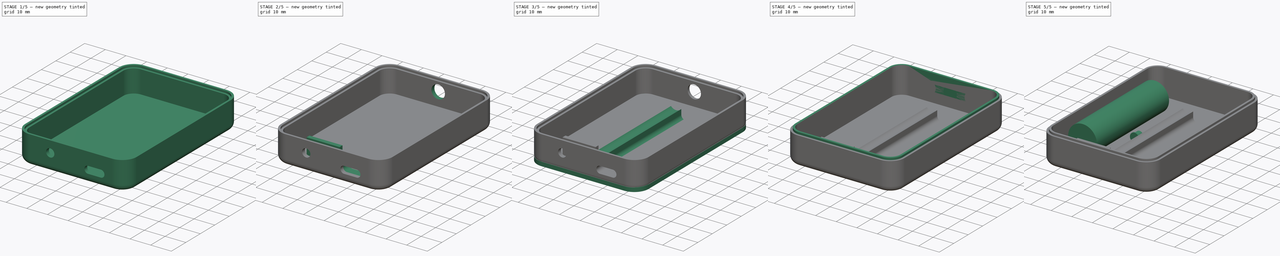
[diagram: build sequence overview — one tinted view per stage of 5, left to right]
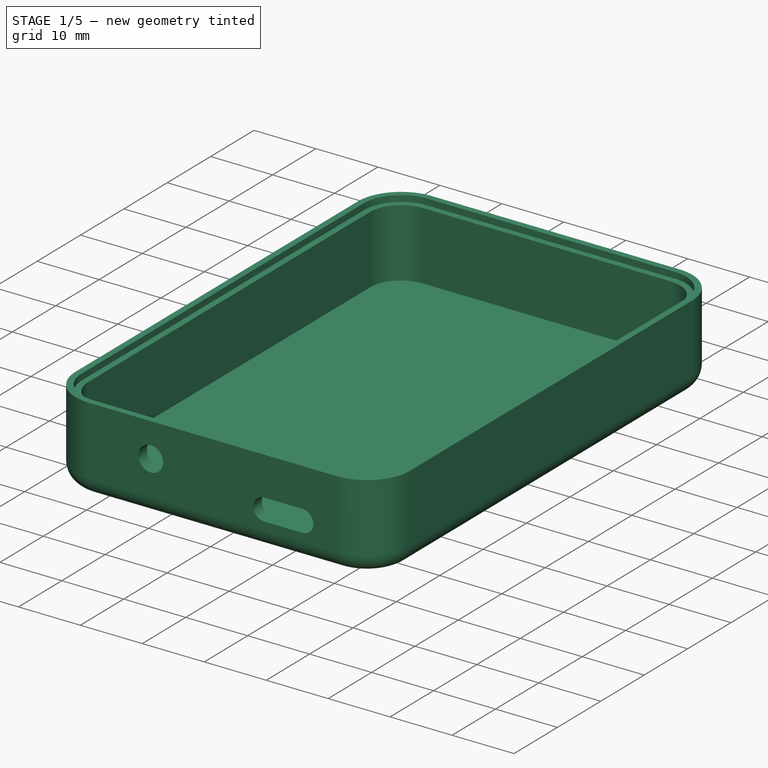
[diagram: stage 1 of 5 — iso view after this stage's code; geometry added in this stage tinted green]
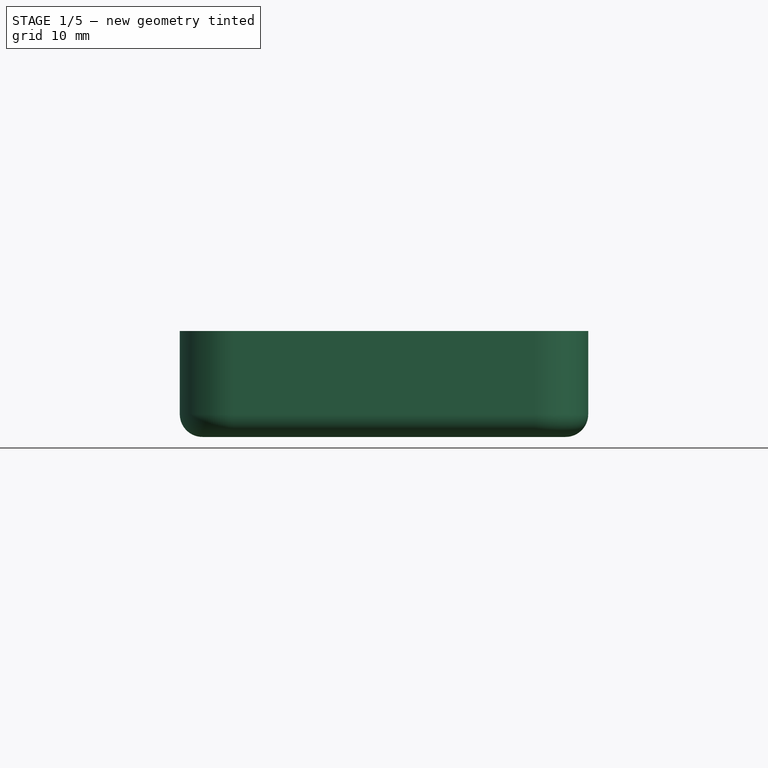
[diagram: stage 1 of 5 — front view after this stage's code; geometry added in this stage tinted green]
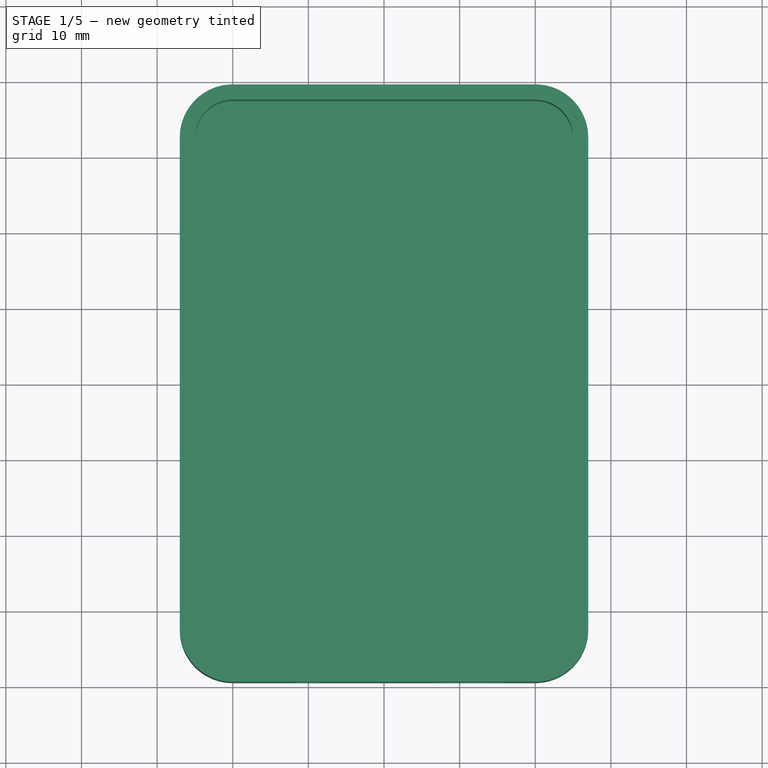
[diagram: stage 1 of 5 — top view after this stage's code; geometry added in this stage tinted green]
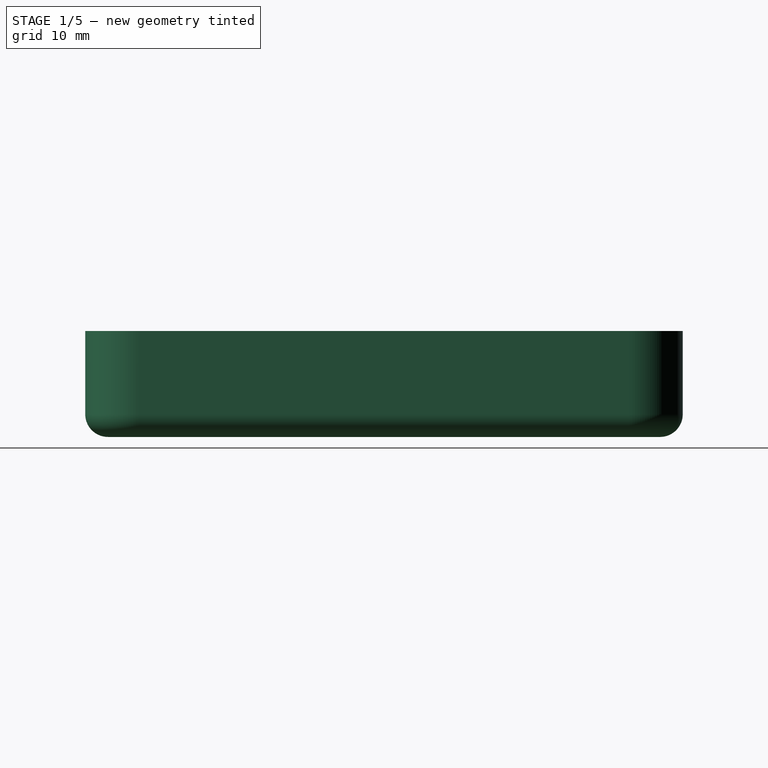
[diagram: stage 1 of 5 — right view after this stage's code; geometry added in this stage tinted green]
FCSTD DOCUMENT  (FreeCAD 1.0R39109 (Git))
Label: Model_PortableV2
License: All rights reserved
LicenseURL: https://en.wikipedia.org/wiki/All_rights_reserved
objects: Part::Feature×88, App::Part×23, Sketcher::SketchObject×17, PartDesign::Pad×10, PartDesign::Fillet×6, PartDesign::Pocket×6, PartDesign::Body×3, Part::Cylinder×1
note: 192 computed .brp shape members not serialized (recipe doc carries the construction recipe); baked Part::Feature solids carry a one-line shape summary decoded from their .brp

FEATURE [Sketcher::SketchObject] Sketch
  ArcFitTolerance = 1e-06
  AttachmentSupport = -> [XY_Plane]
  FullyConstrained = true
  MakeInternals = false
  MapMode = 5
  sketch-geometry (12):
    g0: LineSegment StartX=-27 StartY=32.5 StartZ=0 EndX=-27 EndY=-32.5 EndZ=0
    g1: LineSegment StartX=-20 StartY=-39.5 StartZ=0 EndX=20 EndY=-39.5 EndZ=0
    g2: LineSegment StartX=27 StartY=-32.5 StartZ=0 EndX=27 EndY=32.5 EndZ=0
    g3: LineSegment StartX=20 StartY=39.5 StartZ=0 EndX=-20 EndY=39.5 EndZ=0
    g4: ArcOfCircle CenterX=-20 CenterY=32.5 CenterZ=0 NormalX=0 NormalY=0 NormalZ=1 AngleXU=0 Radius=7 StartAngle=1.5708 EndAngle=3.14159
    g5: GeomPoint [constr] X=-27 Y=39.5 Z=0
    g6: ArcOfCircle CenterX=20 CenterY=32.5 CenterZ=0 NormalX=0 NormalY=0 NormalZ=1 AngleXU=0 Radius=7 StartAngle=0 EndAngle=1.5708
    g7: GeomPoint [constr] X=27 Y=39.5 Z=0
    g8: ArcOfCircle CenterX=20 CenterY=-32.5 CenterZ=0 NormalX=0 NormalY=0 NormalZ=1 AngleXU=0 Radius=7 StartAngle=4.71239 EndAngle=6.28319
    g9: GeomPoint [constr] X=27 Y=-39.5 Z=0
    g10: ArcOfCircle CenterX=-20 CenterY=-32.5 CenterZ=0 NormalX=0 NormalY=0 NormalZ=1 AngleXU=0 Radius=7 StartAngle=3.14159 EndAngle=4.71239
    g11: GeomPoint [constr] X=-27 Y=-39.5 Z=0
  constraints (27):
    c: Vertical(g0)
    c: Vertical(g2)
    c: Horizontal(g1)
    c: Horizontal(g3)
    c: Distance(g5,g7) = 54
    c: Distance(g11,g5) = 79
    c: Symmetric(g5,g9,g-1)
    c: PointOnObject(g5,g0)
    c: PointOnObject(g5,g3)
    c: Tangent(g0,g4) = -1.5708
    c: Tangent(g3,g4) = -1.5708
    c: PointOnObject(g7,g2)
    c: PointOnObject(g7,g3)
    c: Tangent(g2,g6) = -1.5708
    c: Tangent(g3,g6) = -1.5708
    c: PointOnObject(g9,g1)
    c: PointOnObject(g9,g2)
    c: Tangent(g1,g8) = -1.5708
    c: Tangent(g2,g8) = -1.5708
    c: PointOnObject(g11,g0)
    c: PointOnObject(g11,g1)
    c: Tangent(g0,g10) = -1.5708
    c: Tangent(g1,g10) = -1.5708
    c: Equal(g4,g6)
    c: Equal(g6,g8)
    c: Equal(g8,g10)
    c: Radius(g4) = 7
FEATURE [PartDesign::Pad] Pad
  Direction = (0,0,1)
  Length = 2
  Length2 = 10
  Profile = -> Sketch
  ReferenceAxis = -> Sketch [N_Axis]
  Refine = true
  Suppressed = false
  Type = 0
FEATURE [Sketcher::SketchObject] Sketch001
  ArcFitTolerance = 1e-06
  AttachmentSupport = -> [Pad]
  FullyConstrained = true
  MakeInternals = false
  MapMode = 5
  Placement = pos=(0,0,2) rot=(0,0,1;0rad)
  sketch-geometry (24):
    g0: LineSegment StartX=-27 StartY=32.5 StartZ=0 EndX=-27 EndY=-32.5 EndZ=0
    g1: LineSegment StartX=-20 StartY=-39.5 StartZ=0 EndX=20 EndY=-39.5 EndZ=0
    g2: LineSegment StartX=27 StartY=-32.5 StartZ=0 EndX=27 EndY=32.5 EndZ=0
    g3: LineSegment StartX=20 StartY=39.5 StartZ=0 EndX=-20 EndY=39.5 EndZ=0
    g4: LineSegment StartX=-25 StartY=32.5 StartZ=0 EndX=-25 EndY=-32.5 EndZ=0
    g5: LineSegment StartX=-20 StartY=-37.5 StartZ=0 EndX=20 EndY=-37.5 EndZ=0
    g6: LineSegment StartX=25 StartY=-32.5 StartZ=0 EndX=25 EndY=32.5 EndZ=0
    g7: LineSegment StartX=20 StartY=37.5 StartZ=0 EndX=-20 EndY=37.5 EndZ=0
    g8: ArcOfCircle CenterX=-20 CenterY=32.5 CenterZ=0 NormalX=0 NormalY=0 NormalZ=1 AngleXU=0 Radius=7 StartAngle=1.5708 EndAngle=3.14159
    g9: GeomPoint [constr] X=-27 Y=39.5 Z=0
    g10: ArcOfCircle CenterX=20 CenterY=32.5 CenterZ=0 NormalX=0 NormalY=0 NormalZ=1 AngleXU=0 Radius=7 StartAngle=0 EndAngle=1.5708
    g11: GeomPoint [constr] X=27 Y=39.5 Z=0
    g12: ArcOfCircle CenterX=20 CenterY=-32.5 CenterZ=0 NormalX=0 NormalY=0 NormalZ=1 AngleXU=0 Radius=7 StartAngle=4.71239 EndAngle=6.28319
    g13: GeomPoint [constr] X=27 Y=-39.5 Z=0
    g14: ArcOfCircle CenterX=-20 CenterY=-32.5 CenterZ=0 NormalX=0 NormalY=0 NormalZ=1 AngleXU=0 Radius=7 StartAngle=3.14159 EndAngle=4.71239
    g15: GeomPoint [constr] X=-27 Y=-39.5 Z=0
    g16: ArcOfCircle CenterX=-20 CenterY=32.5 CenterZ=0 NormalX=0 NormalY=0 NormalZ=1 AngleXU=0 Radius=5 StartAngle=1.5708 EndAngle=3.14159
    g17: GeomPoint [constr] X=-25 Y=37.5 Z=0
    g18: ArcOfCircle CenterX=20 CenterY=32.5 CenterZ=0 NormalX=0 NormalY=0 NormalZ=1 AngleXU=0 Radius=5 StartAngle=0 EndAngle=1.5708
    g19: GeomPoint [constr] X=25 Y=37.5 Z=0
    g20: ArcOfCircle CenterX=20 CenterY=-32.5 CenterZ=0 NormalX=0 NormalY=0 NormalZ=1 AngleXU=0 Radius=5 StartAngle=4.71239 EndAngle=6.28319
    g21: GeomPoint [constr] X=25 Y=-37.5 Z=0
    g22: ArcOfCircle CenterX=-20 CenterY=-32.5 CenterZ=0 NormalX=0 NormalY=0 NormalZ=1 AngleXU=0 Radius=5 StartAngle=3.14159 EndAngle=4.71239
    g23: GeomPoint [constr] X=-25 Y=-37.5 Z=0
  constraints (54):
    c: Vertical(g0)
    c: Vertical(g2)
    c: Horizontal(g1)
    c: Horizontal(g3)
    c: Vertical(g4)
    c: Vertical(g6)
    c: Horizontal(g5)
    c: Horizontal(g7)
    c: Symmetric(g9,g13,g-1)
    c: Symmetric(g19,g23,g-1)
    c: DistanceX(g9,g11) = 54
    c: DistanceY(g15,g9) = 79
    c: DistanceX(g17,g19) = 50
    c: DistanceY(g23,g17) = 75
    c: PointOnObject(g9,g0)
    c: PointOnObject(g9,g3)
    c: Tangent(g0,g8) = -1.5708
    c: Tangent(g3,g8) = -1.5708
    c: PointOnObject(g11,g2)
    c: PointOnObject(g11,g3)
    c: Tangent(g2,g10) = -1.5708
    c: Tangent(g3,g10) = -1.5708
    c: PointOnObject(g13,g1)
    c: PointOnObject(g13,g2)
    c: Tangent(g1,g12) = -1.5708
    c: Tangent(g2,g12) = -1.5708
    c: PointOnObject(g15,g0)
    c: PointOnObject(g15,g1)
    c: Tangent(g0,g14) = -1.5708
    c: Tangent(g1,g14) = -1.5708
    c: Equal(g14,g12)
    c: Equal(g12,g10)
    c: Equal(g10,g8)
    c: Radius(g8) = 7
    c: PointOnObject(g17,g4)
    c: PointOnObject(g17,g7)
    c: Tangent(g4,g16) = -1.5708
    c: Tangent(g7,g16) = -1.5708
    c: PointOnObject(g19,g6)
    c: PointOnObject(g19,g7)
    c: Tangent(g6,g18) = -1.5708
    c: Tangent(g7,g18) = -1.5708
    c: PointOnObject(g21,g5)
    c: PointOnObject(g21,g6)
    c: Tangent(g5,g20) = -1.5708
    c: Tangent(g6,g20) = -1.5708
    c: PointOnObject(g23,g4)
    c: PointOnObject(g23,g5)
    c: Tangent(g4,g22) = -1.5708
    c: Tangent(g5,g22) = -1.5708
    c: Equal(g22,g20)
    c: Equal(g20,g18)
    c: Equal(g18,g16)
    c: Radius(g18) = 5
FEATURE [PartDesign::Pad] Pad001
  BaseFeature = -> Pad
  Direction = (0,0,1)
  Length = 12
  Length2 = 10
  Profile = -> Sketch001
  ReferenceAxis = -> Sketch001 [N_Axis]
  Refine = true
  Suppressed = false
  Type = 0
FEATURE [PartDesign::Fillet] Fillet
  Base = -> Pad001 [Edge3]
  BaseFeature = -> Pad001
  Radius = 3
  Refine = true
  SupportTransform = false
  Suppressed = false
  UseAllEdges = false
FEATURE [Sketcher::SketchObject] Sketch002
  ArcFitTolerance = 1e-06
  AttachmentSupport = -> [Fillet]
  ExternalGeometry = -> [Fillet]
  FullyConstrained = true
  MakeInternals = false
  MapMode = 5
  Placement = pos=(0,-39.5,0) rot=(1,0,0;1.5708rad)
  sketch-geometry (7):
    g0: ArcOfCircle CenterX=8.3 CenterY=6 CenterZ=0 NormalX=0 NormalY=0 NormalZ=1 AngleXU=0 Radius=1.75 StartAngle=1.5708 EndAngle=4.71239
    g1: ArcOfCircle CenterX=14.5 CenterY=6 CenterZ=0 NormalX=0 NormalY=0 NormalZ=1 AngleXU=0 Radius=1.75 StartAngle=4.71239 EndAngle=7.85398
    g2: LineSegment StartX=8.3 StartY=7.75 StartZ=0 EndX=14.5 EndY=7.75 EndZ=0
    g3: LineSegment StartX=8.3 StartY=4.25 StartZ=0 EndX=14.5 EndY=4.25 EndZ=0
    g4: Circle CenterX=-10 CenterY=8.5 CenterZ=0 NormalX=0 NormalY=0 NormalZ=1 AngleXU=0 Radius=2
    g5: LineSegment [constr] StartX=-20 StartY=14 StartZ=0 EndX=-10 EndY=8.5 EndZ=0
    g6: LineSegment [constr] StartX=-10 StartY=8.5 StartZ=0 EndX=-20 EndY=3 EndZ=0
  constraints (17):
    c: Tangent(g0,g2) = 1.5708
    c: Tangent(g0,g3) = -1.5708
    c: Tangent(g1,g2) = 1.5708
    c: Tangent(g1,g3) = -1.5708
    c: Equal(g0,g1)
    c: Horizontal(g3)
    c: Distance(g0,g1) = 6.2
    c: Radius(g0) = 1.75
    c: DistanceX(g1,g-3) = 5.5
    c: DistanceY(g-3,g1) = 3
    c: Diameter(g4) = 4
    c: Distance(g4,g-4) = 10
    c: Coincident(g5,g-4)
    c: Coincident(g5,g4)
    c: Coincident(g6,g4)
    c: Coincident(g6,g-4)
    c: Equal(g5,g6)
FEATURE [PartDesign::Pocket] Pocket
  BaseFeature = -> Fillet
  Direction = (0,1,-2e-16)
  Length = 5
  Length2 = 5
  Profile = -> Sketch002
  ReferenceAxis = -> Sketch002 [N_Axis]
  Refine = true
  Suppressed = false
  Type = 0
FEATURE [Sketcher::SketchObject] Sketch007
  ArcFitTolerance = 1e-06
  FullyConstrained = true
  MakeInternals = false
  MapMode = 5
  Placement = pos=(0,0,14) rot=(0,0,1;0rad)
  sketch-geometry (24):
    g0: LineSegment StartX=-26 StartY=32.5 StartZ=0 EndX=-26 EndY=-32.5 EndZ=0
    g1: LineSegment StartX=-20 StartY=-38.5 StartZ=0 EndX=20 EndY=-38.5 EndZ=0
    g2: LineSegment StartX=26 StartY=-32.5 StartZ=0 EndX=26 EndY=32.5 EndZ=0
    g3: LineSegment StartX=20 StartY=38.5 StartZ=0 EndX=-20 EndY=38.5 EndZ=0
    g4: LineSegment StartX=-25 StartY=32.5 StartZ=0 EndX=-25 EndY=-32.5 EndZ=0
    g5: LineSegment StartX=-20 StartY=-37.5 StartZ=0 EndX=20 EndY=-37.5 EndZ=0
    g6: LineSegment StartX=25 StartY=-32.5 StartZ=0 EndX=25 EndY=32.5 EndZ=0
    g7: LineSegment StartX=20 StartY=37.5 StartZ=0 EndX=-20 EndY=37.5 EndZ=0
    g8: ArcOfCircle CenterX=-20 CenterY=32.5 CenterZ=0 NormalX=0 NormalY=0 NormalZ=1 AngleXU=0 Radius=6 StartAngle=1.5708 EndAngle=3.14159
    g9: GeomPoint [constr] X=-26 Y=38.5 Z=0
    g10: ArcOfCircle CenterX=20 CenterY=32.5 CenterZ=0 NormalX=0 NormalY=0 NormalZ=1 AngleXU=0 Radius=6 StartAngle=-9e-16 EndAngle=1.5708
    g11: GeomPoint [constr] X=26 Y=38.5 Z=0
    g12: ArcOfCircle CenterX=20 CenterY=-32.5 CenterZ=0 NormalX=0 NormalY=0 NormalZ=1 AngleXU=0 Radius=6 StartAngle=4.71239 EndAngle=6.28319
    g13: GeomPoint [constr] X=26 Y=-38.5 Z=0
    g14: ArcOfCircle CenterX=-20 CenterY=-32.5 CenterZ=0 NormalX=0 NormalY=0 NormalZ=1 AngleXU=0 Radius=6 StartAngle=3.14159 EndAngle=4.71239
    g15: GeomPoint [constr] X=-26 Y=-38.5 Z=0
    g16: ArcOfCircle CenterX=-20 CenterY=32.5 CenterZ=0 NormalX=0 NormalY=0 NormalZ=1 AngleXU=0 Radius=5 StartAngle=1.5708 EndAngle=3.14159
    g17: GeomPoint [constr] X=-25 Y=37.5 Z=0
    g18: ArcOfCircle CenterX=20 CenterY=32.5 CenterZ=0 NormalX=0 NormalY=0 NormalZ=1 AngleXU=0 Radius=5 StartAngle=1e-16 EndAngle=1.5708
    g19: GeomPoint [constr] X=25 Y=37.5 Z=0
    g20: ArcOfCircle CenterX=20 CenterY=-32.5 CenterZ=0 NormalX=0 NormalY=0 NormalZ=1 AngleXU=0 Radius=5 StartAngle=4.71239 EndAngle=6.28319
    g21: GeomPoint [constr] X=25 Y=-37.5 Z=0
    g22: ArcOfCircle CenterX=-20 CenterY=-32.5 CenterZ=0 NormalX=0 NormalY=0 NormalZ=1 AngleXU=0 Radius=5 StartAngle=3.14159 EndAngle=4.71239
    g23: GeomPoint [constr] X=-25 Y=-37.5 Z=0
  constraints (54):
    c: Vertical(g0)
    c: Vertical(g2)
    c: Horizontal(g1)
    c: Horizontal(g3)
    c: Vertical(g4)
    c: Vertical(g6)
    c: Horizontal(g5)
    c: Horizontal(g7)
    c: Symmetric(g11,g15,g-1)
    c: Symmetric(g17,g21,g-1)
    c: DistanceX(g9,g11) = 52
    c: DistanceY(g15,g9) = 77
    c: DistanceX(g17,g19) = 50
    c: DistanceY(g23,g17) = 75
    c: PointOnObject(g9,g0)
    c: PointOnObject(g9,g3)
    c: Tangent(g0,g8) = -1.5708
    c: Tangent(g3,g8) = -1.5708
    c: PointOnObject(g11,g2)
    c: PointOnObject(g11,g3)
    c: Tangent(g2,g10) = -1.5708
    c: Tangent(g3,g10) = -1.5708
    c: PointOnObject(g13,g1)
    c: PointOnObject(g13,g2)
    c: Tangent(g1,g12) = -1.5708
    c: Tangent(g2,g12) = -1.5708
    c: PointOnObject(g15,g0)
    c: PointOnObject(g15,g1)
    c: Tangent(g0,g14) = -1.5708
    c: Tangent(g1,g14) = -1.5708
    c: Equal(g12,g14)
    c: Equal(g14,g8)
    c: Equal(g8,g10)
    c: Radius(g8) = 6
    c: PointOnObject(g17,g4)
    c: PointOnObject(g17,g7)
    c: Tangent(g4,g16) = -1.5708
    c: Tangent(g7,g16) = -1.5708
    c: PointOnObject(g19,g6)
    c: PointOnObject(g19,g7)
    c: Tangent(g6,g18) = -1.5708
    c: Tangent(g7,g18) = -1.5708
    c: PointOnObject(g21,g5)
    c: PointOnObject(g21,g6)
    c: Tangent(g5,g20) = -1.5708
    c: Tangent(g6,g20) = -1.5708
    c: PointOnObject(g23,g4)
    c: PointOnObject(g23,g5)
    c: Tangent(g4,g22) = -1.5708
    c: Tangent(g5,g22) = -1.5708
    c: Equal(g22,g20)
    c: Equal(g20,g18)
    c: Equal(g18,g16)
    c: Radius(g16) = 5
FEATURE [PartDesign::Pocket] Pocket003
  BaseFeature = -> Pocket
  Direction = (0,0,-1)
  Length = 1
  Length2 = 5
  Profile = -> Sketch007
  ReferenceAxis = -> Sketch007 [N_Axis]
  Refine = true
  Suppressed = false
  Type = 0
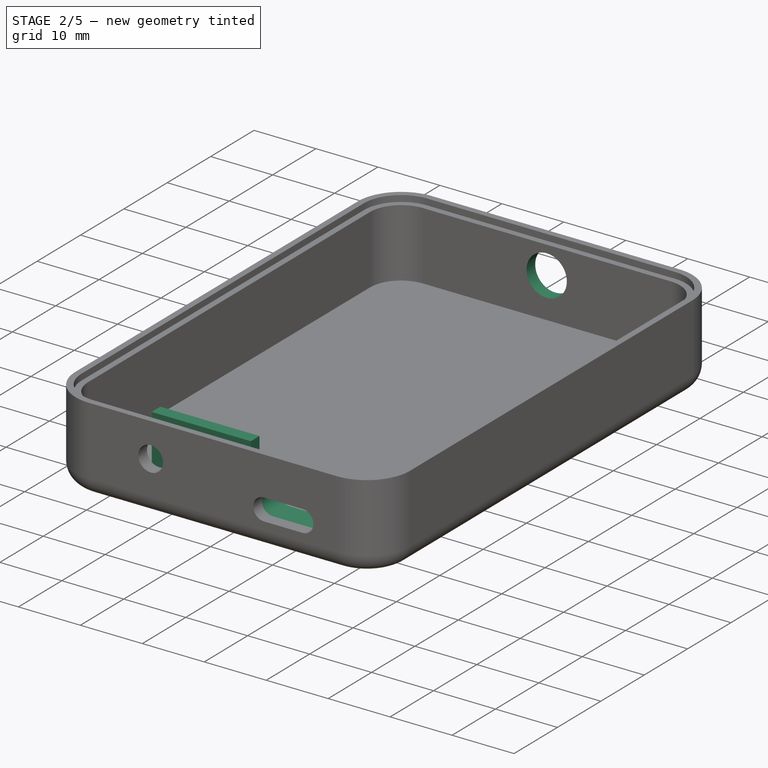
[diagram: stage 2 of 5 — iso view after this stage's code; geometry added in this stage tinted green]
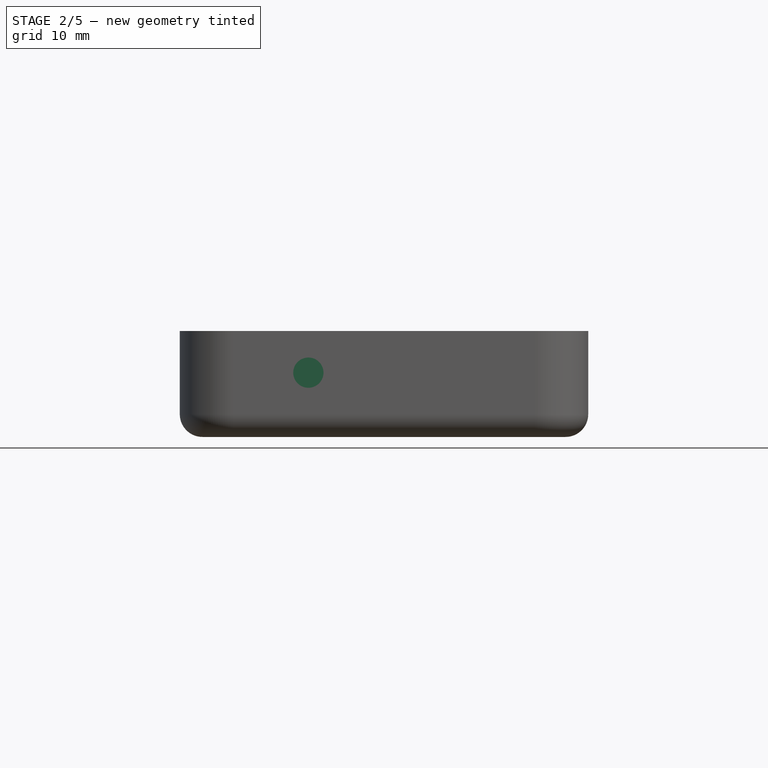
[diagram: stage 2 of 5 — front view after this stage's code; geometry added in this stage tinted green]
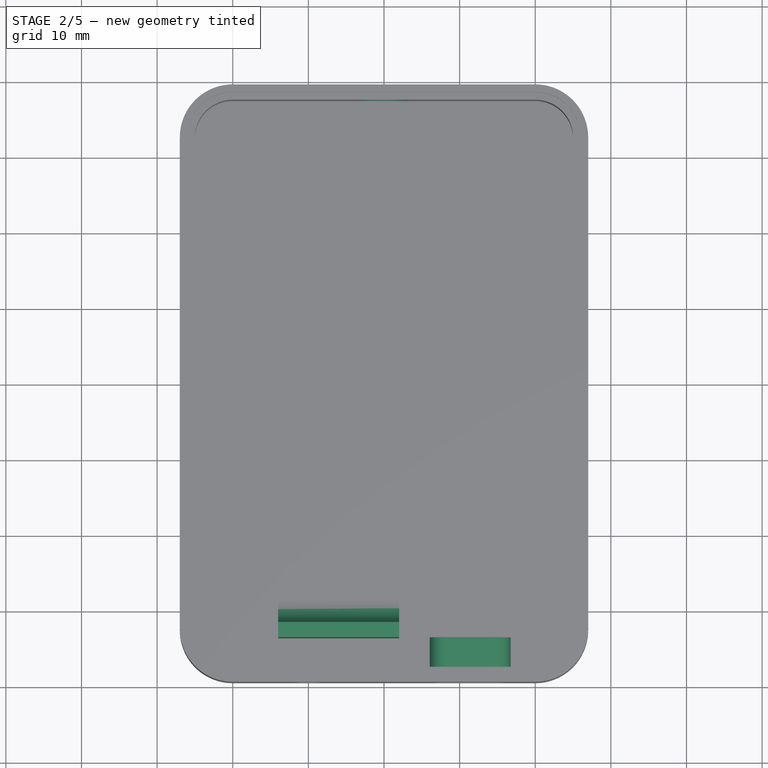
[diagram: stage 2 of 5 — top view after this stage's code; geometry added in this stage tinted green]
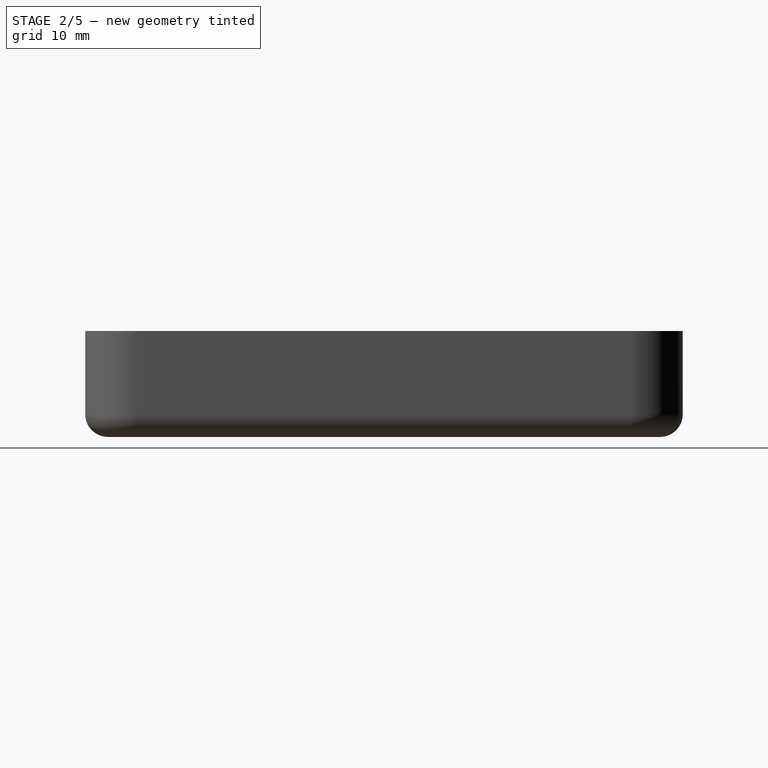
[diagram: stage 2 of 5 — right view after this stage's code; geometry added in this stage tinted green]
FEATURE [PartDesign::Body] Body002  label="Button"
  AllowCompound = false
  Group = -> [Sketch013,Pad005,Sketch014,Sketch015,Pad006]
  Origin = -> Origin002
  Placement = pos=(-16,-40.4,5) rot=(0,0,1;3.14159rad)
  Tip = -> Pad006
FEATURE [Sketcher::SketchObject] Sketch016
  ArcFitTolerance = 1e-06
  AttachmentSupport = -> [Pocket003]
  ExternalGeometry = -> [Pocket003]
  FullyConstrained = true
  MakeInternals = false
  MapMode = 5
  Placement = pos=(0,0,2) rot=(0,0,1;0rad)
  sketch-geometry (4):
    g0: LineSegment StartX=-14 StartY=-31.55 StartZ=0 EndX=-14 EndY=-33.55 EndZ=0
    g1: LineSegment StartX=-14 StartY=-33.55 StartZ=0 EndX=2 EndY=-33.55 EndZ=0
    g2: LineSegment StartX=2 StartY=-33.55 StartZ=0 EndX=2 EndY=-31.55 EndZ=0
    g3: LineSegment StartX=2 StartY=-31.55 StartZ=0 EndX=-14 EndY=-31.55 EndZ=0
  constraints (12):
    c: Coincident(g0,g1)
    c: Coincident(g1,g2)
    c: Coincident(g2,g3)
    c: Coincident(g3,g0)
    c: Vertical(g0)
    c: Vertical(g2)
    c: Horizontal(g1)
    c: Horizontal(g3)
    c: DistanceY(g-3,g0) = 3.95
    c: Distance(g3,g1) = 2
    c: DistanceX(g-3,g0) = 6
    c: DistanceX(g3,g3) = 16
FEATURE [PartDesign::Pad] Pad007
  BaseFeature = -> Pocket003
  Direction = (0,0,1)
  Length = 10
  Length2 = 10
  Profile = -> Sketch016
  ReferenceAxis = -> Sketch016 [N_Axis]
  Refine = true
  Suppressed = false
  Type = 0
FEATURE [PartDesign::Fillet] Fillet002
  Base = -> Pad007 [Edge101]
  BaseFeature = -> Pad007
  Radius = 3
  Refine = true
  SupportTransform = false
  Suppressed = false
  UseAllEdges = false
FEATURE [Sketcher::SketchObject] Sketch017
  ArcFitTolerance = 1e-06
  AttachmentSupport = -> [Fillet002]
  ExternalGeometry = -> [Fillet002]
  FullyConstrained = true
  MakeInternals = false
  MapMode = 5
  Placement = pos=(0,-37.5,0) rot=(0,0.707107,0.707107;3.14159rad)
  sketch-geometry (8):
    g0: ArcOfCircle CenterX=-14.5 CenterY=6 CenterZ=0 NormalX=0 NormalY=0 NormalZ=1 AngleXU=0 Radius=1.85 StartAngle=1.5708 EndAngle=4.71239
    g1: ArcOfCircle CenterX=-8.3 CenterY=6 CenterZ=0 NormalX=0 NormalY=0 NormalZ=1 AngleXU=0 Radius=1.85 StartAngle=4.71239 EndAngle=7.85398
    g2: LineSegment StartX=-14.5 StartY=7.85 StartZ=0 EndX=-8.3 EndY=7.85 EndZ=0
    g3: LineSegment StartX=-14.5 StartY=4.15 StartZ=0 EndX=-8.3 EndY=4.15 EndZ=0
    g4: ArcOfCircle CenterX=-14.5 CenterY=6 CenterZ=0 NormalX=0 NormalY=0 NormalZ=1 AngleXU=0 Radius=2.25 StartAngle=1.5708 EndAngle=4.71239
    g5: ArcOfCircle CenterX=-8.3 CenterY=6 CenterZ=0 NormalX=0 NormalY=0 NormalZ=1 AngleXU=0 Radius=2.25 StartAngle=4.71239 EndAngle=7.85398
    g6: LineSegment StartX=-14.5 StartY=8.25 StartZ=0 EndX=-8.3 EndY=8.25 EndZ=0
    g7: LineSegment StartX=-14.5 StartY=3.75 StartZ=0 EndX=-8.3 EndY=3.75 EndZ=0
  constraints (16):
    c: Tangent(g0,g2) = 1.5708
    c: Tangent(g0,g3) = -1.5708
    c: Tangent(g1,g2) = 1.5708
    c: Tangent(g1,g3) = -1.5708
    c: Equal(g0,g1)
    c: Tangent(g4,g6) = 1.5708
    c: Tangent(g4,g7) = -1.5708
    c: Tangent(g5,g6) = 1.5708
    c: Tangent(g5,g7) = -1.5708
    c: Equal(g4,g5)
    c: Coincident(g4,g0)
    c: Coincident(g5,g1)
    c: Coincident(g0,g-4)
    c: Coincident(g-5,g1)
    c: DistanceY(g-4,g0) = 0.1
    c: DistanceY(g0,g4) = 0.4
FEATURE [PartDesign::Pad] Pad008
  BaseFeature = -> Fillet002
  Direction = (0,1,-2e-16)
  Length = 4
  Length2 = 10
  Profile = -> Sketch017
  ReferenceAxis = -> Sketch017 [N_Axis]
  Refine = true
  Suppressed = false
  Type = 0
FEATURE [PartDesign::Body] Body001  label="Top"
  AllowCompound = false
  Group = -> [Sketch003,Pad002,Sketch004,Pad003,Fillet001,Sketch006,Pocket002,Sketch008,Pad004,Fillet003,Sketch018,Pocket004]
  Origin = -> Origin001
  Placement = pos=(-3.4e-15,0,28) rot=(0,1,0;3.14159rad)
  Tip = -> Pocket004
FEATURE [Part::Feature] Part__Feature142  label="OLED_0.91_128x32"
  shape: bbox 38.3 x 12.1 x 2.57 mm, 270 faces (baked)
FEATURE [Part::Feature] Part__Feature143  label="Pin Header 4 x 1 TH 2.54mm Pitch"
  Placement = pos=(-17.55,-3.81,-2.6) rot=(0,0,1;0rad)
  shape: bbox 2.54 x 2.54 x 2.54 mm, 20 faces (baked)
FEATURE [Part::Feature] Part__Feature144  label="Pin Header 4 x 1 TH 2.54mm Pitch001"
  Placement = pos=(-17.55,-3.81,-2.6) rot=(0,0,1;0rad)
  shape: bbox 0.635 x 0.635 x 11.43 mm, 14 faces (baked)
FEATURE [Part::Feature] Part__Feature145  label="Pin Header 4 x 1 TH 2.54mm Pitch002"
  Placement = pos=(-17.55,-3.81,-2.6) rot=(0,0,1;0rad)
  shape: bbox 2.54 x 2.54 x 2.54 mm, 20 faces (baked)
FEATURE [Part::Feature] Part__Feature146  label="Pin Header 4 x 1 TH 2.54mm Pitch003"
  Placement = pos=(-17.55,-3.81,-2.6) rot=(0,0,1;0rad)
  shape: bbox 0.635 x 0.635 x 11.43 mm, 14 faces (baked)
FEATURE [Part::Feature] Part__Feature147  label="Pin Header 4 x 1 TH 2.54mm Pitch004"
  Placement = pos=(-17.55,-3.81,-2.6) rot=(0,0,1;0rad)
  shape: bbox 2.54 x 2.54 x 2.54 mm, 20 faces (baked)
FEATURE [Part::Feature] Part__Feature148  label="Pin Header 4 x 1 TH 2.54mm Pitch005"
  Placement = pos=(-17.55,-3.81,-2.6) rot=(0,0,1;0rad)
  shape: bbox 0.635 x 0.635 x 11.43 mm, 14 faces (baked)
FEATURE [Part::Feature] Part__Feature149  label="Pin Header 4 x 1 TH 2.54mm Pitch006"
  Placement = pos=(-17.55,-3.81,-2.6) rot=(0,0,1;0rad)
  shape: bbox 2.54 x 2.54 x 2.54 mm, 20 faces (baked)
FEATURE [Part::Feature] Part__Feature150  label="Pin Header 4 x 1 TH 2.54mm Pitch007"
  Placement = pos=(-17.55,-3.81,-2.6) rot=(0,0,1;0rad)
  shape: bbox 0.635 x 0.635 x 11.43 mm, 14 faces (baked)
FEATURE [App::Part] Pin_Header_4_x_1_TH_2_54mm_Pitch  label="Pin Header 4 x 1 TH 2.54mm Pitch008"
  Group = -> [Part__Feature143,Part__Feature144,Part__Feature145,Part__Feature146,Part__Feature147,Part__Feature148,Part__Feature149,Part__Feature150]
  Origin = -> Origin016
FEATURE [Part::Feature] Part__Feature151  label="RESC-0603"
  Placement = pos=(4.3,-5.3,1.9e-15) rot=(1,0,0;3.14159rad)
  shape: bbox 0.4 x 0.9 x 0.53 mm, 18 faces (baked)
FEATURE [Part::Feature] Part__Feature152  label="RESC-0604"
  Placement = pos=(4.3,-5.3,1.9e-15) rot=(1,0,0;3.14159rad)
  shape: bbox 0.4 x 0.9 x 0.53 mm, 18 faces (baked)
FEATURE [Part::Feature] Part__Feature153  label="RESC-0605"
  Placement = pos=(4.3,-5.3,1.9e-15) rot=(1,0,0;3.14159rad)
  shape: bbox 1.64 x 0.9 x 0.52 mm, 16 faces (baked)
FEATURE [App::Part] RESC_0603  label="RESC-0606"
  Group = -> [Part__Feature151,Part__Feature152,Part__Feature153]
  Origin = -> Origin017
FEATURE [Part::Feature] Part__Feature154  label="RESC-0607"
  Placement = pos=(4.3,-3.8,1.9e-15) rot=(1,0,0;3.14159rad)
  shape: bbox 0.4 x 0.9 x 0.53 mm, 18 faces (baked)
FEATURE [Part::Feature] Part__Feature155  label="RESC-0608"
  Placement = pos=(4.3,-3.8,1.9e-15) rot=(1,0,0;3.14159rad)
  shape: bbox 0.4 x 0.9 x 0.53 mm, 18 faces (baked)
FEATURE [Part::Feature] Part__Feature156  label="RESC-0609"
  Placement = pos=(4.3,-3.8,1.9e-15) rot=(1,0,0;3.14159rad)
  shape: bbox 1.64 x 0.9 x 0.52 mm, 16 faces (baked)
FEATURE [App::Part] RESC_0604  label="RESC-0610"
  Group = -> [Part__Feature154,Part__Feature155,Part__Feature156]
  Origin = -> Origin018
FEATURE [Part::Feature] Part__Feature157  label="RESC-0611"
  Placement = pos=(4.3,-2.3,1.9e-15) rot=(1,0,0;3.14159rad)
  shape: bbox 0.4 x 0.9 x 0.53 mm, 18 faces (baked)
FEATURE [Part::Feature] Part__Feature158  label="RESC-0612"
  Placement = pos=(4.3,-2.3,1.9e-15) rot=(1,0,0;3.14159rad)
  shape: bbox 0.4 x 0.9 x 0.53 mm, 18 faces (baked)
FEATURE [Part::Feature] Part__Feature159  label="RESC-0613"
  Placement = pos=(4.3,-2.3,1.9e-15) rot=(1,0,0;3.14159rad)
  shape: bbox 1.64 x 0.9 x 0.52 mm, 16 faces (baked)
FEATURE [App::Part] RESC_0605  label="RESC-0614"
  Group = -> [Part__Feature157,Part__Feature158,Part__Feature159]
  Origin = -> Origin019
FEATURE [Part::Feature] Part__Feature160  label="RESC-0615"
  Placement = pos=(4.3,-0.8,1.9e-15) rot=(1,0,0;3.14159rad)
  shape: bbox 0.4 x 0.9 x 0.53 mm, 18 faces (baked)
FEATURE [Part::Feature] Part__Feature161  label="RESC-0616"
  Placement = pos=(4.3,-0.8,1.9e-15) rot=(1,0,0;3.14159rad)
  shape: bbox 0.4 x 0.9 x 0.53 mm, 18 faces (baked)
FEATURE [Part::Feature] Part__Feature162  label="RESC-0617"
  Placement = pos=(4.3,-0.8,1.9e-15) rot=(1,0,0;3.14159rad)
  shape: bbox 1.64 x 0.9 x 0.52 mm, 16 faces (baked)
FEATURE [App::Part] RESC_0606  label="RESC-0618"
  Group = -> [Part__Feature160,Part__Feature161,Part__Feature162]
  Origin = -> Origin020
FEATURE [Part::Feature] Part__Feature163  label="RESC-0619"
  Placement = pos=(4.3,0.7,1.9e-15) rot=(1,0,0;3.14159rad)
  shape: bbox 0.4 x 0.9 x 0.53 mm, 18 faces (baked)
FEATURE [Part::Feature] Part__Feature164  label="RESC-0620"
  Placement = pos=(4.3,0.7,1.9e-15) rot=(1,0,0;3.14159rad)
  shape: bbox 0.4 x 0.9 x 0.53 mm, 18 faces (baked)
FEATURE [Part::Feature] Part__Feature165  label="RESC-0621"
  Placement = pos=(4.3,0.7,1.9e-15) rot=(1,0,0;3.14159rad)
  shape: bbox 1.64 x 0.9 x 0.52 mm, 16 faces (baked)
FEATURE [App::Part] RESC_0607  label="RESC-0622"
  Group = -> [Part__Feature163,Part__Feature164,Part__Feature165]
  Origin = -> Origin021
FEATURE [Part::Feature] Part__Feature166  label="RESC-0623"
  Placement = pos=(4.3,2.2,1.9e-15) rot=(1,0,0;3.14159rad)
  shape: bbox 0.4 x 0.9 x 0.53 mm, 18 faces (baked)
FEATURE [Part::Feature] Part__Feature167  label="RESC-0624"
  Placement = pos=(4.3,2.2,1.9e-15) rot=(1,0,0;3.14159rad)
  shape: bbox 0.4 x 0.9 x 0.53 mm, 18 faces (baked)
FEATURE [Part::Feature] Part__Feature168  label="RESC-0625"
  Placement = pos=(4.3,2.2,1.9e-15) rot=(1,0,0;3.14159rad)
  shape: bbox 1.64 x 0.9 x 0.52 mm, 16 faces (baked)
FEATURE [App::Part] RESC_0608  label="RESC-0626"
  Group = -> [Part__Feature166,Part__Feature167,Part__Feature168]
  Origin = -> Origin022
FEATURE [Part::Feature] Part__Feature169  label="RESC-0627"
  Placement = pos=(4.3,3.7,1.9e-15) rot=(1,0,0;3.14159rad)
  shape: bbox 0.4 x 0.9 x 0.53 mm, 18 faces (baked)
FEATURE [Part::Feature] Part__Feature170  label="RESC-0628"
  Placement = pos=(4.3,3.7,1.9e-15) rot=(1,0,0;3.14159rad)
  shape: bbox 0.4 x 0.9 x 0.53 mm, 18 faces (baked)
FEATURE [Part::Feature] Part__Feature171  label="RESC-0629"
  Placement = pos=(4.3,3.7,1.9e-15) rot=(1,0,0;3.14159rad)
  shape: bbox 1.64 x 0.9 x 0.52 mm, 16 faces (baked)
FEATURE [App::Part] RESC_0609  label="RESC-0630"
  Group = -> [Part__Feature169,Part__Feature170,Part__Feature171]
  Origin = -> Origin023
FEATURE [Part::Feature] Part__Feature172  label="RESC-0631"
  Placement = pos=(4.3,5.2,1.9e-15) rot=(1,0,0;3.14159rad)
  shape: bbox 0.4 x 0.9 x 0.53 mm, 18 faces (baked)
FEATURE [Part::Feature] Part__Feature173  label="RESC-0632"
  Placement = pos=(4.3,5.2,1.9e-15) rot=(1,0,0;3.14159rad)
  shape: bbox 0.4 x 0.9 x 0.53 mm, 18 faces (baked)
FEATURE [Part::Feature] Part__Feature174  label="RESC-0633"
  Placement = pos=(4.3,5.2,1.9e-15) rot=(1,0,0;3.14159rad)
  shape: bbox 1.64 x 0.9 x 0.52 mm, 16 faces (baked)
FEATURE [App::Part] RESC_0610  label="RESC-0634"
  Group = -> [Part__Feature172,Part__Feature173,Part__Feature174]
  Origin = -> Origin024
FEATURE [Part::Feature] Part__Feature175  label="RESC-0635"
  Placement = pos=(-1.4,-3.06,1.9e-15) rot=(1,0,0;3.14159rad)
  shape: bbox 0.4 x 0.9 x 0.53 mm, 18 faces (baked)
FEATURE [Part::Feature] Part__Feature176  label="RESC-0636"
  Placement = pos=(-1.4,-3.06,1.9e-15) rot=(1,0,0;3.14159rad)
  shape: bbox 0.4 x 0.9 x 0.53 mm, 18 faces (baked)
FEATURE [Part::Feature] Part__Feature177  label="RESC-0637"
  Placement = pos=(-1.4,-3.06,1.9e-15) rot=(1,0,0;3.14159rad)
  shape: bbox 1.64 x 0.9 x 0.52 mm, 16 faces (baked)
FEATURE [App::Part] RESC_0611  label="RESC-0638"
  Group = -> [Part__Feature175,Part__Feature176,Part__Feature177]
  Origin = -> Origin025
FEATURE [Part::Feature] Part__Feature178  label="RESC-0639"
  Placement = pos=(-1.4,-1.56,1.9e-15) rot=(1,0,0;3.14159rad)
  shape: bbox 0.4 x 0.9 x 0.53 mm, 18 faces (baked)
FEATURE [Part::Feature] Part__Feature179  label="RESC-0640"
  Placement = pos=(-1.4,-1.56,1.9e-15) rot=(1,0,0;3.14159rad)
  shape: bbox 0.4 x 0.9 x 0.53 mm, 18 faces (baked)
FEATURE [Part::Feature] Part__Feature180  label="RESC-0641"
  Placement = pos=(-1.4,-1.56,1.9e-15) rot=(1,0,0;3.14159rad)
  shape: bbox 1.64 x 0.9 x 0.52 mm, 16 faces (baked)
FEATURE [App::Part] RESC_0612  label="RESC-0642"
  Group = -> [Part__Feature178,Part__Feature179,Part__Feature180]
  Origin = -> Origin026
FEATURE [Part::Feature] Part__Feature181  label="RESC-0643"
  Placement = pos=(-1.4,-0.06,1.9e-15) rot=(1,0,0;3.14159rad)
  shape: bbox 0.4 x 0.9 x 0.53 mm, 18 faces (baked)
FEATURE [Part::Feature] Part__Feature182  label="RESC-0644"
  Placement = pos=(-1.4,-0.06,1.9e-15) rot=(1,0,0;3.14159rad)
  shape: bbox 0.4 x 0.9 x 0.53 mm, 18 faces (baked)
FEATURE [Part::Feature] Part__Feature183  label="RESC-0645"
  Placement = pos=(-1.4,-0.06,1.9e-15) rot=(1,0,0;3.14159rad)
  shape: bbox 1.64 x 0.9 x 0.52 mm, 16 faces (baked)
FEATURE [App::Part] RESC_0613  label="RESC-0646"
  Group = -> [Part__Feature181,Part__Feature182,Part__Feature183]
  Origin = -> Origin027
FEATURE [Part::Feature] Part__Feature184  label="RESC-0647"
  Placement = pos=(-1.4,1.44,1.9e-15) rot=(1,0,0;3.14159rad)
  shape: bbox 0.4 x 0.9 x 0.53 mm, 18 faces (baked)
FEATURE [Part::Feature] Part__Feature185  label="RESC-0648"
  Placement = pos=(-1.4,1.44,1.9e-15) rot=(1,0,0;3.14159rad)
  shape: bbox 0.4 x 0.9 x 0.53 mm, 18 faces (baked)
FEATURE [Part::Feature] Part__Feature186  label="RESC-0649"
  Placement = pos=(-1.4,1.44,1.9e-15) rot=(1,0,0;3.14159rad)
  shape: bbox 1.64 x 0.9 x 0.52 mm, 16 faces (baked)
FEATURE [App::Part] RESC_0614  label="RESC-0650"
  Group = -> [Part__Feature184,Part__Feature185,Part__Feature186]
  Origin = -> Origin028
FEATURE [Part::Feature] Part__Feature187  label="RESC-0651"
  Placement = pos=(-1.4,2.94,1.9e-15) rot=(1,0,0;3.14159rad)
  shape: bbox 0.4 x 0.9 x 0.53 mm, 18 faces (baked)
FEATURE [Part::Feature] Part__Feature188  label="RESC-0652"
  Placement = pos=(-1.4,2.94,1.9e-15) rot=(1,0,0;3.14159rad)
  shape: bbox 0.4 x 0.9 x 0.53 mm, 18 faces (baked)
FEATURE [Part::Feature] Part__Feature189  label="RESC-0653"
  Placement = pos=(-1.4,2.94,1.9e-15) rot=(1,0,0;3.14159rad)
  shape: bbox 1.64 x 0.9 x 0.52 mm, 16 faces (baked)
FEATURE [App::Part] RESC_0615  label="RESC-0654"
  Group = -> [Part__Feature187,Part__Feature188,Part__Feature189]
  Origin = -> Origin029
FEATURE [Part::Feature] Part__Feature190  label="2SD0601A"
  Placement = pos=(-9.8,-1.3,-0.08) rot=(-1,0,0;1.5708rad)
  shape: bbox 1.5 x 2.9 x 1.1 mm, 10 faces (baked)
FEATURE [Part::Feature] Part__Feature191  label="2SD0601A001"
  Placement = pos=(-9.8,-1.3,-0.08) rot=(-1,0,0;1.5708rad)
  shape: bbox 0.6367 x 0.4 x 0.86 mm, 15 faces (baked)
FEATURE [Part::Feature] Part__Feature192  label="2SD0601A002"
  Placement = pos=(-9.8,-1.3,-0.08) rot=(-1,0,0;1.5708rad)
  shape: bbox 0.6367 x 0.4 x 0.86 mm, 15 faces (baked)
FEATURE [Part::Feature] Part__Feature193  label="2SD0601A003"
  Placement = pos=(-9.8,-1.3,-0.08) rot=(-1,0,0;1.5708rad)
  shape: bbox 0.6367 x 0.4 x 0.86 mm, 15 faces (baked)
FEATURE [App::Part] _SD0601A  label="2SD0601A004"
  Group = -> [Part__Feature190,Part__Feature191,Part__Feature192,Part__Feature193]
  Origin = -> Origin030
FEATURE [App::Part] OLED_0_91_128x32  label="OLED_0.91_128x033"
  Group = -> [Part__Feature142,Pin_Header_4_x_1_TH_2_54mm_Pitch,RESC_0603,RESC_0604,RESC_0605,RESC_0606,RESC_0607,RESC_0608,RESC_0609,RESC_0610,RESC_0611,RESC_0612,RESC_0613,RESC_0614,RESC_0615,_SD0601A]
  Origin = -> Origin031
  Placement = pos=(11.3,-14.9,24.8) rot=(0,0,1;4.71239rad)
FEATURE [Sketcher::SketchObject] Sketch019
  ArcFitTolerance = 1e-06
  AttachmentSupport = -> [Pad008]
  ExternalGeometry = -> [Pad008]
  FullyConstrained = true
  MakeInternals = false
  MapMode = 5
  Placement = pos=(0,39.5,0) rot=(0,0.707107,0.707107;3.14159rad)
  sketch-geometry (1):
    g0: Circle CenterX=-8e-16 CenterY=8.5 CenterZ=0 NormalX=0 NormalY=0 NormalZ=1 AngleXU=0 Radius=3.25
  constraints (2):
    c: Diameter(g0) = 6.5
    c: Symmetric(g-4,g-3,g0)
FEATURE [PartDesign::Pocket] Pocket005
  BaseFeature = -> Pad008
  Direction = (0,-1,2e-16)
  Length = 2
  Length2 = 5
  Profile = -> Sketch019
  ReferenceAxis = -> Sketch019 [N_Axis]
  Refine = true
  Suppressed = false
  Type = 0
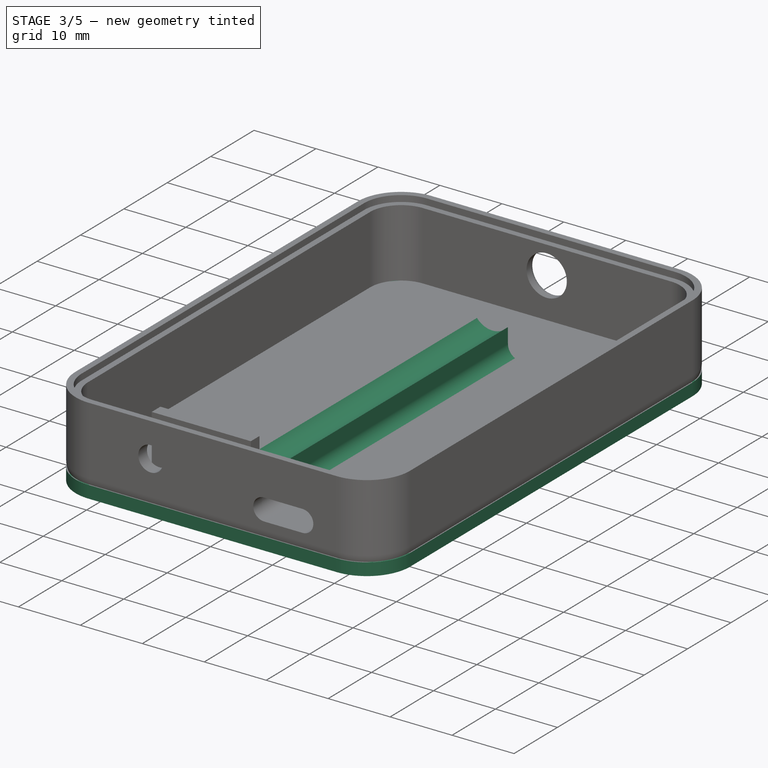
[diagram: stage 3 of 5 — iso view after this stage's code; geometry added in this stage tinted green]
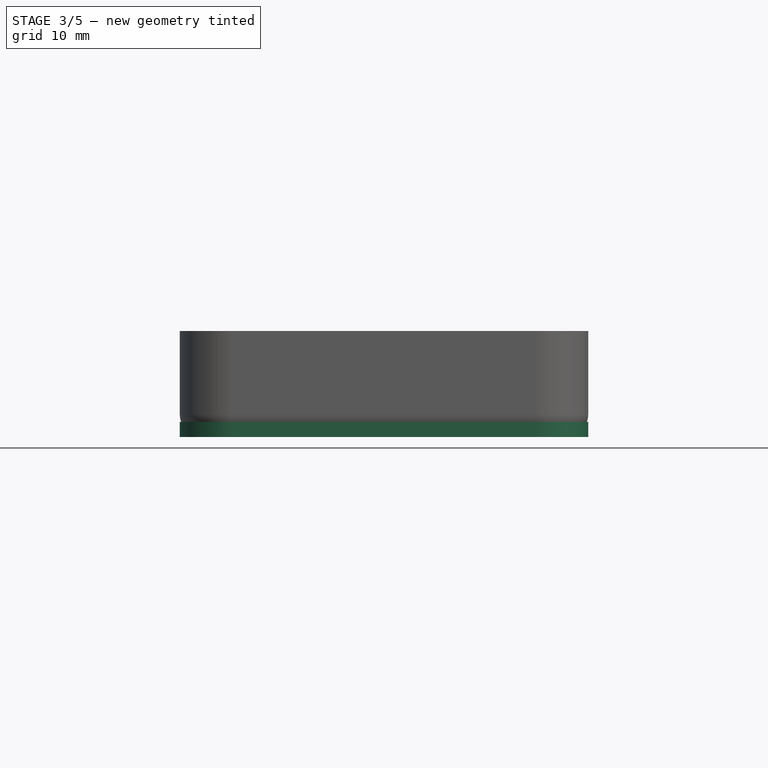
[diagram: stage 3 of 5 — front view after this stage's code; geometry added in this stage tinted green]
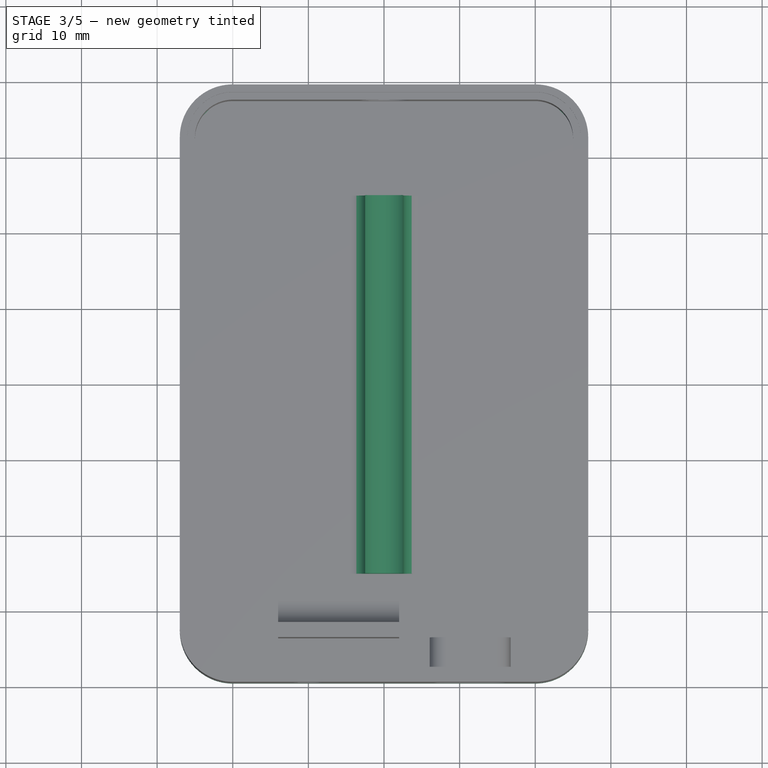
[diagram: stage 3 of 5 — top view after this stage's code; geometry added in this stage tinted green]
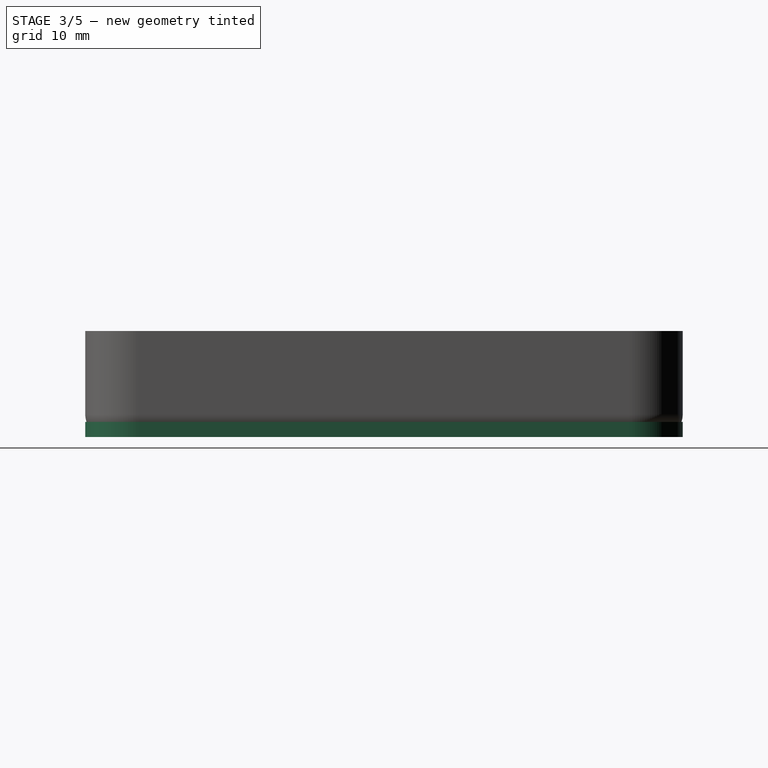
[diagram: stage 3 of 5 — right view after this stage's code; geometry added in this stage tinted green]
FEATURE [Sketcher::SketchObject] Sketch003
  ArcFitTolerance = 1e-06
  AttachmentSupport = -> [XY_Plane001]
  FullyConstrained = true
  MakeInternals = false
  MapMode = 5
  sketch-geometry (12):
    g0: LineSegment StartX=-27 StartY=32.5 StartZ=0 EndX=-27 EndY=-32.5 EndZ=0
    g1: LineSegment StartX=-20 StartY=-39.5 StartZ=0 EndX=20 EndY=-39.5 EndZ=0
    g2: LineSegment StartX=27 StartY=-32.5 StartZ=0 EndX=27 EndY=32.5 EndZ=0
    g3: LineSegment StartX=20 StartY=39.5 StartZ=0 EndX=-20 EndY=39.5 EndZ=0
    g4: ArcOfCircle CenterX=-20 CenterY=32.5 CenterZ=0 NormalX=0 NormalY=0 NormalZ=1 AngleXU=0 Radius=7 StartAngle=1.5708 EndAngle=3.14159
    g5: GeomPoint [constr] X=-27 Y=39.5 Z=0
    g6: ArcOfCircle CenterX=20 CenterY=32.5 CenterZ=0 NormalX=0 NormalY=0 NormalZ=1 AngleXU=0 Radius=7 StartAngle=0 EndAngle=1.5708
    g7: GeomPoint [constr] X=27 Y=39.5 Z=0
    g8: ArcOfCircle CenterX=20 CenterY=-32.5 CenterZ=0 NormalX=0 NormalY=0 NormalZ=1 AngleXU=0 Radius=7 StartAngle=4.71239 EndAngle=6.28319
    g9: GeomPoint [constr] X=27 Y=-39.5 Z=0
    g10: ArcOfCircle CenterX=-20 CenterY=-32.5 CenterZ=0 NormalX=0 NormalY=0 NormalZ=1 AngleXU=0 Radius=7 StartAngle=3.14159 EndAngle=4.71239
    g11: GeomPoint [constr] X=-27 Y=-39.5 Z=0
  constraints (27):
    c: Vertical(g0)
    c: Vertical(g2)
    c: Horizontal(g1)
    c: Horizontal(g3)
    c: Distance(g5,g7) = 54
    c: Distance(g11,g5) = 79
    c: Symmetric(g5,g9,g-1)
    c: PointOnObject(g5,g0)
    c: PointOnObject(g5,g3)
    c: Tangent(g0,g4) = -1.5708
    c: Tangent(g3,g4) = -1.5708
    c: PointOnObject(g7,g2)
    c: PointOnObject(g7,g3)
    c: Tangent(g2,g6) = -1.5708
    c: Tangent(g3,g6) = -1.5708
    c: PointOnObject(g9,g1)
    c: PointOnObject(g9,g2)
    c: Tangent(g1,g8) = -1.5708
    c: Tangent(g2,g8) = -1.5708
    c: PointOnObject(g11,g0)
    c: PointOnObject(g11,g1)
    c: Tangent(g0,g10) = -1.5708
    c: Tangent(g1,g10) = -1.5708
    c: Equal(g4,g6)
    c: Equal(g6,g8)
    c: Equal(g8,g10)
    c: Radius(g4) = 7
FEATURE [PartDesign::Pad] Pad002
  Direction = (0,0,1)
  Length = 2
  Length2 = 10
  Profile = -> Sketch003
  ReferenceAxis = -> Sketch003 [N_Axis]
  Refine = true
  Suppressed = false
  Type = 0
FEATURE [PartDesign::Fillet] Fillet004
  Base = -> Pocket005 [Edge57]
  BaseFeature = -> Pocket005
  Radius = 1
  Refine = true
  SupportTransform = false
  Suppressed = false
  UseAllEdges = false
FEATURE [Sketcher::SketchObject] Sketch020
  ArcFitTolerance = 1e-06
  AttachmentSupport = -> [Fillet004]
  FullyConstrained = true
  MakeInternals = false
  MapMode = 5
  Placement = pos=(0,0,2) rot=(0,0,1;0rad)
  sketch-geometry (4):
    g0: LineSegment StartX=-2.5 StartY=25 StartZ=0 EndX=-2.5 EndY=-25 EndZ=0
    g1: LineSegment StartX=-2.5 StartY=-25 StartZ=0 EndX=2.5 EndY=-25 EndZ=0
    g2: LineSegment StartX=2.5 StartY=-25 StartZ=0 EndX=2.5 EndY=25 EndZ=0
    g3: LineSegment StartX=2.5 StartY=25 StartZ=0 EndX=-2.5 EndY=25 EndZ=0
  constraints (11):
    c: Coincident(g0,g1)
    c: Coincident(g1,g2)
    c: Coincident(g2,g3)
    c: Coincident(g3,g0)
    c: Vertical(g0)
    c: Vertical(g2)
    c: Horizontal(g1)
    c: Horizontal(g3)
    c: Symmetric(g0,g1,g-1)
    c: DistanceY(g0,g0) = 50
    c: DistanceX(g3,g3) = 5
FEATURE [PartDesign::Pad] Pad009
  BaseFeature = -> Fillet004
  Direction = (0,0,1)
  Length = 8
  Length2 = 10
  Profile = -> Sketch020
  ReferenceAxis = -> Sketch020 [N_Axis]
  Refine = true
  Suppressed = false
  Type = 0
FEATURE [PartDesign::Fillet] Fillet005
  Base = -> Pad009 [Edge29,Edge27]
  BaseFeature = -> Pad009
  Radius = 2
  Refine = true
  SupportTransform = false
  Suppressed = false
  UseAllEdges = false
FEATURE [Sketcher::SketchObject] Sketch021
  ArcFitTolerance = 1e-06
  AttachmentSupport = -> [Fillet005]
  ExternalGeometry = -> [Fillet005]
  FullyConstrained = true
  MakeInternals = false
  MapMode = 5
  Placement = pos=(0,25,0) rot=(0,0.707107,0.707107;3.14159rad)
  sketch-geometry (1):
    g0: Circle CenterX=0 CenterY=8.5 CenterZ=0 NormalX=0 NormalY=0 NormalZ=1 AngleXU=0 Radius=3.25
  constraints (2):
    c: Coincident(g0,g-3)
    c: Diameter(g0) = 6.5
FEATURE [PartDesign::Pocket] Pocket006
  BaseFeature = -> Fillet005
  Direction = (0,-1,2e-16)
  Length = 50
  Length2 = 5
  Profile = -> Sketch021 [Edge1]
  ReferenceAxis = -> Sketch021 [N_Axis]
  Refine = true
  Suppressed = false
  Type = 0
FEATURE [PartDesign::Body] Body  label="Bottom"
  AllowCompound = false
  Group = -> [Sketch,Pad,Sketch001,Pad001,Fillet,Sketch002,Pocket,Sketch007,Pocket003,Sketch016,Pad007,Fillet002,Sketch017,Pad008,Sketch019,Pocket005,Fillet004,Sketch020,Pad009,Fillet005,Sketch021,Pocket006]
  Origin = -> Origin
  Tip = -> Pocket006
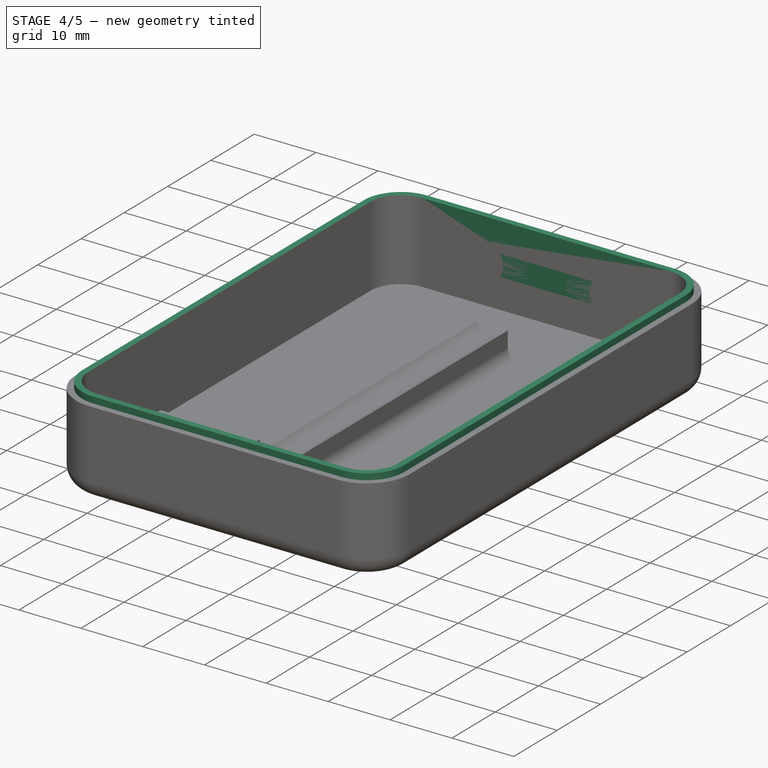
[diagram: stage 4 of 5 — iso view after this stage's code; geometry added in this stage tinted green]
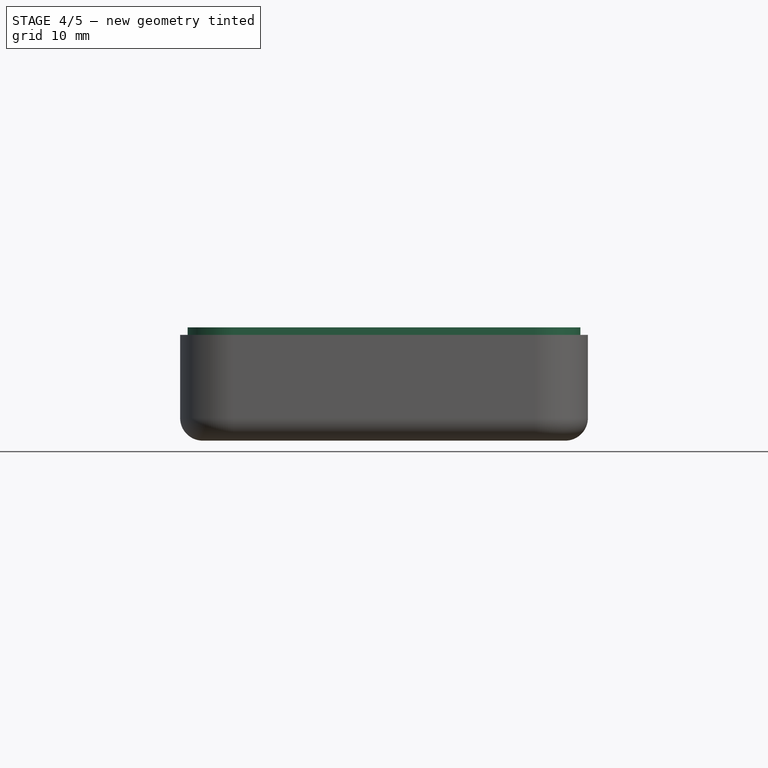
[diagram: stage 4 of 5 — front view after this stage's code; geometry added in this stage tinted green]
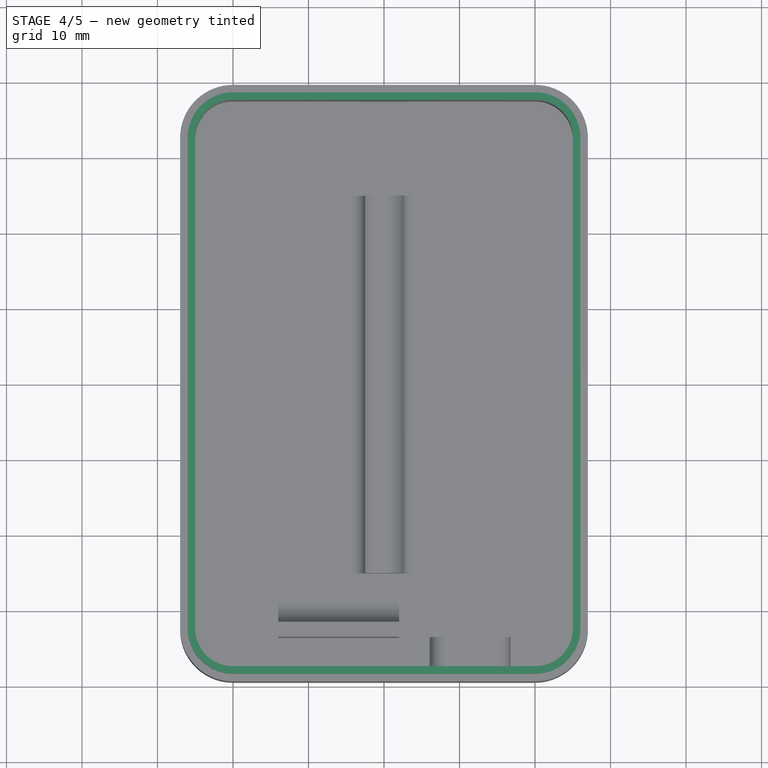
[diagram: stage 4 of 5 — top view after this stage's code; geometry added in this stage tinted green]
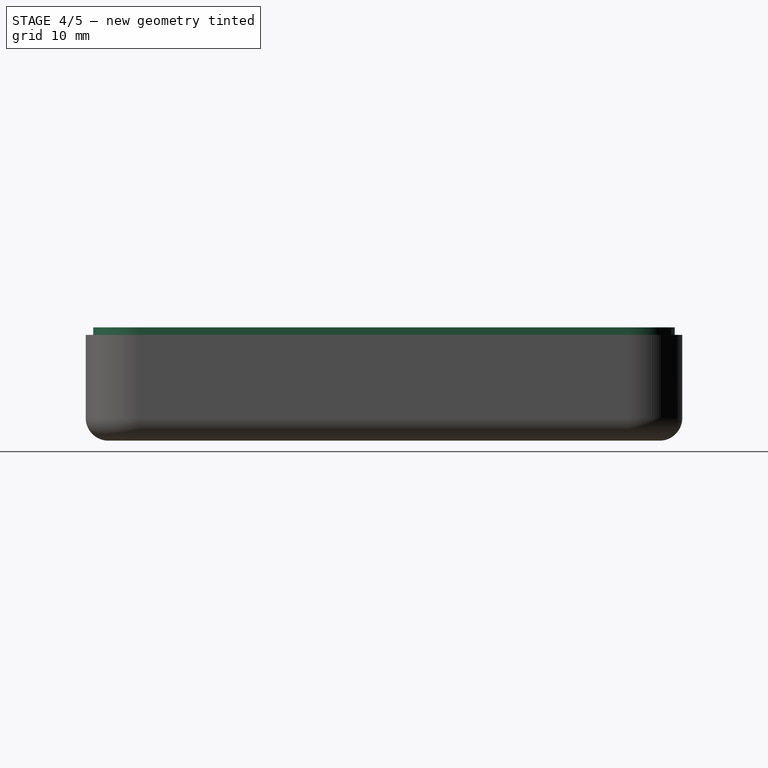
[diagram: stage 4 of 5 — right view after this stage's code; geometry added in this stage tinted green]
FEATURE [Sketcher::SketchObject] Sketch004
  ArcFitTolerance = 1e-06
  AttachmentSupport = -> [Pad002]
  FullyConstrained = true
  MakeInternals = false
  MapMode = 5
  Placement = pos=(0,0,2) rot=(0,0,1;0rad)
  sketch-geometry (24):
    g0: LineSegment StartX=-27 StartY=32.5 StartZ=0 EndX=-27 EndY=-32.5 EndZ=0
    g1: LineSegment StartX=-20 StartY=-39.5 StartZ=0 EndX=20 EndY=-39.5 EndZ=0
    g2: LineSegment StartX=27 StartY=-32.5 StartZ=0 EndX=27 EndY=32.5 EndZ=0
    g3: LineSegment StartX=20 StartY=39.5 StartZ=0 EndX=-20 EndY=39.5 EndZ=0
    g4: LineSegment StartX=-25 StartY=32.5 StartZ=0 EndX=-25 EndY=-32.5 EndZ=0
    g5: LineSegment StartX=-20 StartY=-37.5 StartZ=0 EndX=20 EndY=-37.5 EndZ=0
    g6: LineSegment StartX=25 StartY=-32.5 StartZ=0 EndX=25 EndY=32.5 EndZ=0
    g7: LineSegment StartX=20 StartY=37.5 StartZ=0 EndX=-20 EndY=37.5 EndZ=0
    g8: ArcOfCircle CenterX=-20 CenterY=32.5 CenterZ=0 NormalX=0 NormalY=0 NormalZ=1 AngleXU=0 Radius=7 StartAngle=1.5708 EndAngle=3.14159
    g9: GeomPoint [constr] X=-27 Y=39.5 Z=0
    g10: ArcOfCircle CenterX=20 CenterY=32.5 CenterZ=0 NormalX=0 NormalY=0 NormalZ=1 AngleXU=0 Radius=7 StartAngle=0 EndAngle=1.5708
    g11: GeomPoint [constr] X=27 Y=39.5 Z=0
    g12: ArcOfCircle CenterX=20 CenterY=-32.5 CenterZ=0 NormalX=0 NormalY=0 NormalZ=1 AngleXU=0 Radius=7 StartAngle=4.71239 EndAngle=6.28319
    g13: GeomPoint [constr] X=27 Y=-39.5 Z=0
    g14: ArcOfCircle CenterX=-20 CenterY=-32.5 CenterZ=0 NormalX=0 NormalY=0 NormalZ=1 AngleXU=0 Radius=7 StartAngle=3.14159 EndAngle=4.71239
    g15: GeomPoint [constr] X=-27 Y=-39.5 Z=0
    g16: ArcOfCircle CenterX=-20 CenterY=32.5 CenterZ=0 NormalX=0 NormalY=0 NormalZ=1 AngleXU=0 Radius=5 StartAngle=1.5708 EndAngle=3.14159
    g17: GeomPoint [constr] X=-25 Y=37.5 Z=0
    g18: ArcOfCircle CenterX=20 CenterY=32.5 CenterZ=0 NormalX=0 NormalY=0 NormalZ=1 AngleXU=0 Radius=5 StartAngle=0 EndAngle=1.5708
    g19: GeomPoint [constr] X=25 Y=37.5 Z=0
    g20: ArcOfCircle CenterX=20 CenterY=-32.5 CenterZ=0 NormalX=0 NormalY=0 NormalZ=1 AngleXU=0 Radius=5 StartAngle=4.71239 EndAngle=6.28319
    g21: GeomPoint [constr] X=25 Y=-37.5 Z=0
    g22: ArcOfCircle CenterX=-20 CenterY=-32.5 CenterZ=0 NormalX=0 NormalY=0 NormalZ=1 AngleXU=0 Radius=5 StartAngle=3.14159 EndAngle=4.71239
    g23: GeomPoint [constr] X=-25 Y=-37.5 Z=0
  constraints (54):
    c: Vertical(g0)
    c: Vertical(g2)
    c: Horizontal(g1)
    c: Horizontal(g3)
    c: Vertical(g4)
    c: Vertical(g6)
    c: Horizontal(g5)
    c: Horizontal(g7)
    c: Symmetric(g9,g13,g-1)
    c: Symmetric(g19,g23,g-1)
    c: DistanceX(g9,g11) = 54
    c: DistanceY(g15,g9) = 79
    c: DistanceX(g17,g19) = 50
    c: DistanceY(g23,g17) = 75
    c: PointOnObject(g9,g0)
    c: PointOnObject(g9,g3)
    c: Tangent(g0,g8) = -1.5708
    c: Tangent(g3,g8) = -1.5708
    c: PointOnObject(g11,g2)
    c: PointOnObject(g11,g3)
    c: Tangent(g2,g10) = -1.5708
    c: Tangent(g3,g10) = -1.5708
    c: PointOnObject(g13,g1)
    c: PointOnObject(g13,g2)
    c: Tangent(g1,g12) = -1.5708
    c: Tangent(g2,g12) = -1.5708
    c: PointOnObject(g15,g0)
    c: PointOnObject(g15,g1)
    c: Tangent(g0,g14) = -1.5708
    c: Tangent(g1,g14) = -1.5708
    c: Equal(g14,g12)
    c: Equal(g12,g10)
    c: Equal(g10,g8)
    c: Radius(g8) = 7
    c: PointOnObject(g17,g4)
    c: PointOnObject(g17,g7)
    c: Tangent(g4,g16) = -1.5708
    c: Tangent(g7,g16) = -1.5708
    c: PointOnObject(g19,g6)
    c: PointOnObject(g19,g7)
    c: Tangent(g6,g18) = -1.5708
    c: Tangent(g7,g18) = -1.5708
    c: PointOnObject(g21,g5)
    c: PointOnObject(g21,g6)
    c: Tangent(g5,g20) = -1.5708
    c: Tangent(g6,g20) = -1.5708
    c: PointOnObject(g23,g4)
    c: PointOnObject(g23,g5)
    c: Tangent(g4,g22) = -1.5708
    c: Tangent(g5,g22) = -1.5708
    c: Equal(g22,g20)
    c: Equal(g20,g18)
    c: Equal(g18,g16)
    c: Radius(g18) = 5
FEATURE [PartDesign::Pad] Pad003
  BaseFeature = -> Pad002
  Direction = (0,0,1)
  Length = 12
  Length2 = 10
  Profile = -> Sketch004
  ReferenceAxis = -> Sketch004 [N_Axis]
  Refine = true
  Suppressed = false
  Type = 0
FEATURE [PartDesign::Fillet] Fillet001
  Base = -> Pad003 [Edge3]
  BaseFeature = -> Pad003
  Radius = 3
  Refine = true
  SupportTransform = false
  Suppressed = false
  UseAllEdges = false
FEATURE [Sketcher::SketchObject] Sketch006
  ArcFitTolerance = 1e-06
  AttachmentSupport = -> [Fillet001]
  ExternalGeometry = -> [Fillet001]
  FullyConstrained = true
  MakeInternals = false
  MapMode = 5
  Placement = pos=(0,39.5,0) rot=(0,0.707107,0.707107;3.14159rad)
  sketch-geometry (4):
    g0: Circle CenterX=-10 CenterY=8.5 CenterZ=0 NormalX=0 NormalY=0 NormalZ=1 AngleXU=0 Radius=3
    g1: Circle CenterX=10 CenterY=8.5 CenterZ=0 NormalX=0 NormalY=0 NormalZ=1 AngleXU=0 Radius=3
    g2: LineSegment [constr] StartX=20 StartY=3 StartZ=0 EndX=10 EndY=8.5 EndZ=0
    g3: LineSegment [constr] StartX=10 StartY=8.5 StartZ=0 EndX=20 EndY=14 EndZ=0
  constraints (9):
    c: Diameter(g0) = 6
    c: Diameter(g1) = 6
    c: Symmetric(g0,g1,g-2)
    c: Coincident(g2,g-5)
    c: Coincident(g2,g1)
    c: Coincident(g3,g1)
    c: Coincident(g3,g-4)
    c: Equal(g3,g2)
    c: DistanceX(g-3,g0) = 10
FEATURE [PartDesign::Pocket] Pocket002
  BaseFeature = -> Fillet001
  Direction = (0,-1,2e-16)
  Length = 5
  Length2 = 5
  Profile = -> Sketch006
  ReferenceAxis = -> Sketch006 [N_Axis]
  Refine = true
  Suppressed = false
  Type = 0
FEATURE [Sketcher::SketchObject] Sketch008
  ArcFitTolerance = 1e-06
  AttachmentSupport = -> [Pocket002]
  FullyConstrained = true
  MakeInternals = false
  MapMode = 5
  Placement = pos=(0,0,14) rot=(0,0,1;0rad)
  sketch-geometry (24):
    g0: LineSegment StartX=-26 StartY=32.5 StartZ=0 EndX=-26 EndY=-32.5 EndZ=0
    g1: LineSegment StartX=-20 StartY=-38.5 StartZ=0 EndX=20 EndY=-38.5 EndZ=0
    g2: LineSegment StartX=26 StartY=-32.5 StartZ=0 EndX=26 EndY=32.5 EndZ=0
    g3: LineSegment StartX=20 StartY=38.5 StartZ=0 EndX=-20 EndY=38.5 EndZ=0
    g4: LineSegment StartX=-25 StartY=32.5 StartZ=0 EndX=-25 EndY=-32.5 EndZ=0
    g5: LineSegment StartX=-20 StartY=-37.5 StartZ=0 EndX=20 EndY=-37.5 EndZ=0
    g6: LineSegment StartX=25 StartY=-32.5 StartZ=0 EndX=25 EndY=32.5 EndZ=0
    g7: LineSegment StartX=20 StartY=37.5 StartZ=0 EndX=-20 EndY=37.5 EndZ=0
    g8: ArcOfCircle CenterX=-20 CenterY=32.5 CenterZ=0 NormalX=0 NormalY=0 NormalZ=1 AngleXU=0 Radius=6 StartAngle=1.5708 EndAngle=3.14159
    g9: GeomPoint [constr] X=-26 Y=38.5 Z=0
    g10: ArcOfCircle CenterX=20 CenterY=32.5 CenterZ=0 NormalX=0 NormalY=0 NormalZ=1 AngleXU=0 Radius=6 StartAngle=0 EndAngle=1.5708
    g11: GeomPoint [constr] X=26 Y=38.5 Z=0
    g12: ArcOfCircle CenterX=20 CenterY=-32.5 CenterZ=0 NormalX=0 NormalY=0 NormalZ=1 AngleXU=0 Radius=6 StartAngle=4.71239 EndAngle=6.28319
    g13: GeomPoint [constr] X=26 Y=-38.5 Z=0
    g14: ArcOfCircle CenterX=-20 CenterY=-32.5 CenterZ=0 NormalX=0 NormalY=0 NormalZ=1 AngleXU=0 Radius=6 StartAngle=3.14159 EndAngle=4.71239
    g15: GeomPoint [constr] X=-26 Y=-38.5 Z=0
    g16: ArcOfCircle CenterX=-20 CenterY=32.5 CenterZ=0 NormalX=0 NormalY=0 NormalZ=1 AngleXU=0 Radius=5 StartAngle=1.5708 EndAngle=3.14159
    g17: GeomPoint [constr] X=-25 Y=37.5 Z=0
    g18: ArcOfCircle CenterX=20 CenterY=32.5 CenterZ=0 NormalX=0 NormalY=0 NormalZ=1 AngleXU=0 Radius=5 StartAngle=0 EndAngle=1.5708
    g19: GeomPoint [constr] X=25 Y=37.5 Z=0
    g20: ArcOfCircle CenterX=20 CenterY=-32.5 CenterZ=0 NormalX=0 NormalY=0 NormalZ=1 AngleXU=0 Radius=5 StartAngle=4.71239 EndAngle=6.28319
    g21: GeomPoint [constr] X=25 Y=-37.5 Z=0
    g22: ArcOfCircle CenterX=-20 CenterY=-32.5 CenterZ=0 NormalX=0 NormalY=0 NormalZ=1 AngleXU=0 Radius=5 StartAngle=3.14159 EndAngle=4.71239
    g23: GeomPoint [constr] X=-25 Y=-37.5 Z=0
  constraints (54):
    c: Vertical(g0)
    c: Vertical(g2)
    c: Horizontal(g1)
    c: Horizontal(g3)
    c: Vertical(g4)
    c: Vertical(g6)
    c: Horizontal(g5)
    c: Horizontal(g7)
    c: Symmetric(g11,g15,g-1)
    c: Symmetric(g17,g21,g-1)
    c: DistanceX(g9,g11) = 52
    c: DistanceY(g15,g9) = 77
    c: DistanceX(g17,g19) = 50
    c: DistanceY(g23,g17) = 75
    c: PointOnObject(g9,g0)
    c: PointOnObject(g9,g3)
    c: Tangent(g0,g8) = -1.5708
    c: Tangent(g3,g8) = -1.5708
    c: PointOnObject(g11,g2)
    c: PointOnObject(g11,g3)
    c: Tangent(g2,g10) = -1.5708
    c: Tangent(g3,g10) = -1.5708
    c: PointOnObject(g13,g1)
    c: PointOnObject(g13,g2)
    c: Tangent(g1,g12) = -1.5708
    c: Tangent(g2,g12) = -1.5708
    c: PointOnObject(g15,g0)
    c: PointOnObject(g15,g1)
    c: Tangent(g0,g14) = -1.5708
    c: Tangent(g1,g14) = -1.5708
    c: Equal(g12,g14)
    c: Equal(g14,g8)
    c: Equal(g8,g10)
    c: Radius(g8) = 6
    c: PointOnObject(g17,g4)
    c: PointOnObject(g17,g7)
    c: Tangent(g4,g16) = -1.5708
    c: Tangent(g7,g16) = -1.5708
    c: PointOnObject(g19,g6)
    c: PointOnObject(g19,g7)
    c: Tangent(g6,g18) = -1.5708
    c: Tangent(g7,g18) = -1.5708
    c: PointOnObject(g21,g5)
    c: PointOnObject(g21,g6)
    c: Tangent(g5,g20) = -1.5708
    c: Tangent(g6,g20) = -1.5708
    c: PointOnObject(g23,g4)
    c: PointOnObject(g23,g5)
    c: Tangent(g4,g22) = -1.5708
    c: Tangent(g5,g22) = -1.5708
    c: Equal(g22,g20)
    c: Equal(g20,g18)
    c: Equal(g18,g16)
    c: Radius(g16) = 5
FEATURE [PartDesign::Pad] Pad004
  BaseFeature = -> Pocket002
  Direction = (0,0,1)
  Length = 1
  Length2 = 10
  Profile = -> Sketch008
  ReferenceAxis = -> Sketch008 [N_Axis]
  Refine = true
  Suppressed = false
  Type = 0
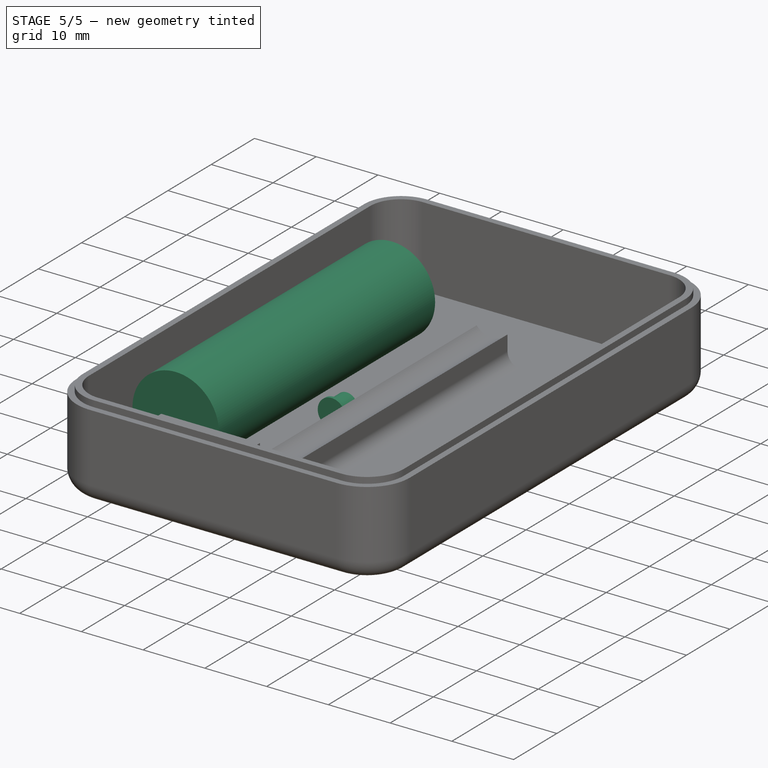
[diagram: stage 5 of 5 — iso view after this stage's code; geometry added in this stage tinted green]
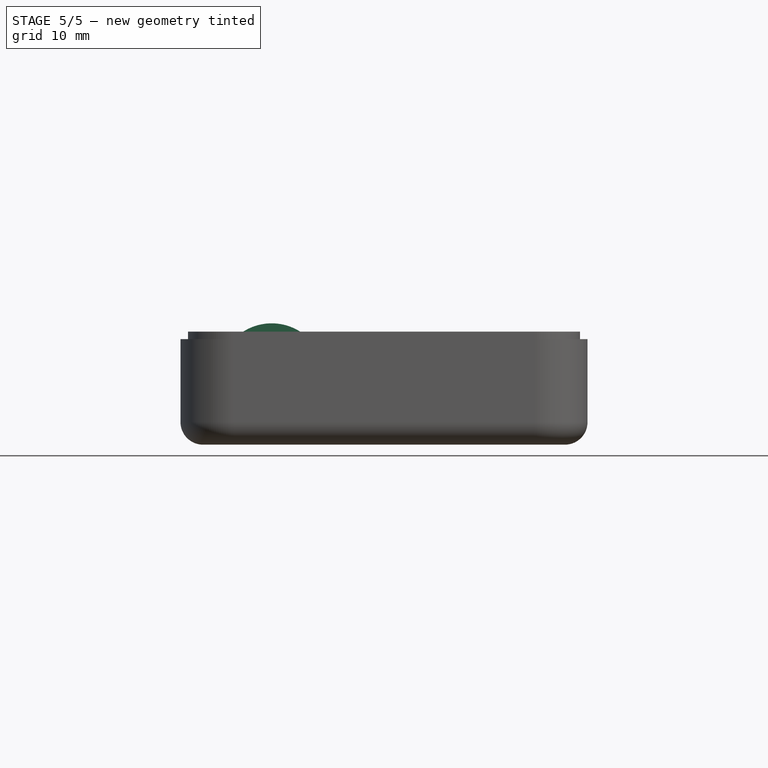
[diagram: stage 5 of 5 — front view after this stage's code; geometry added in this stage tinted green]
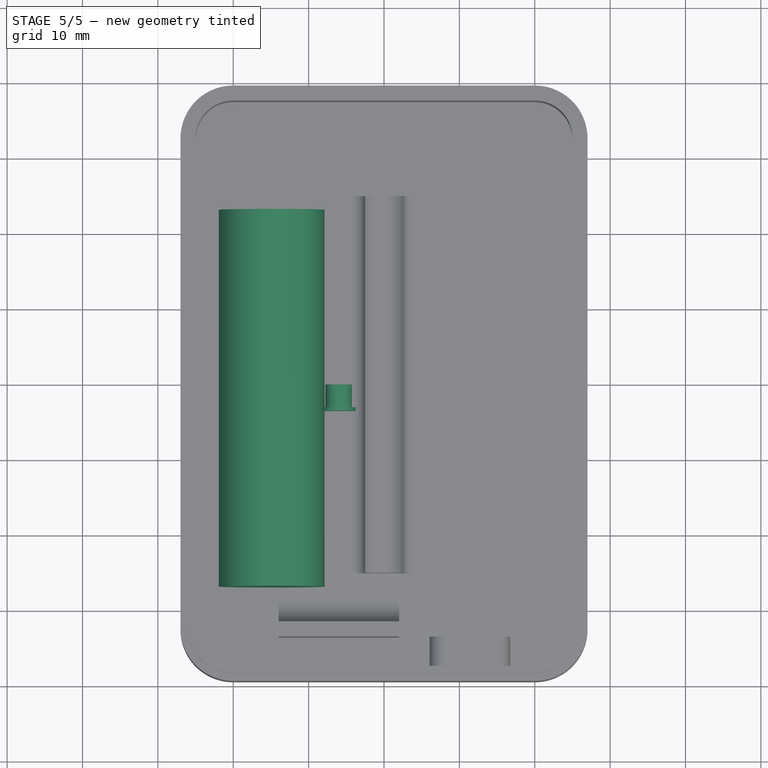
[diagram: stage 5 of 5 — top view after this stage's code; geometry added in this stage tinted green]
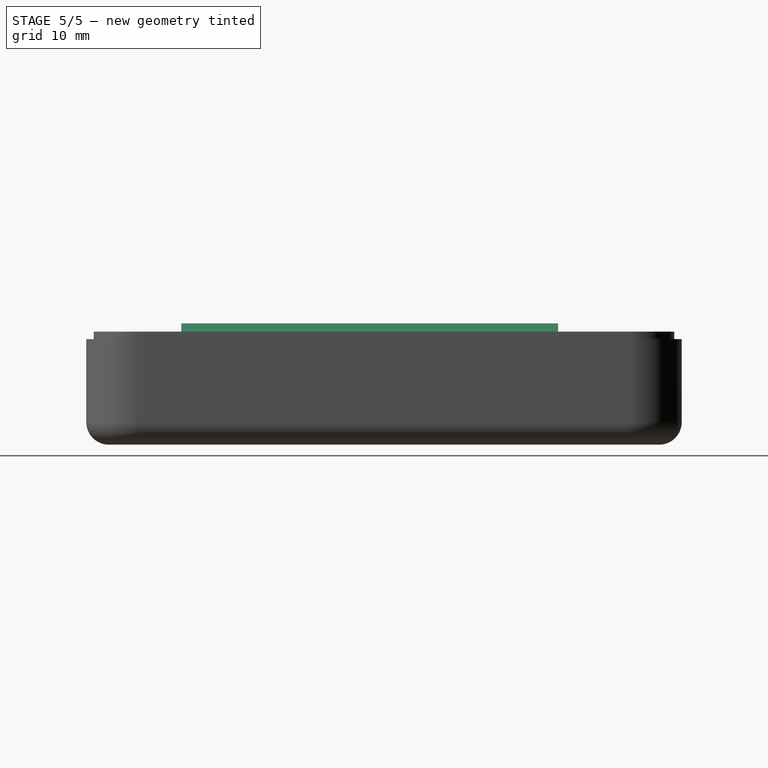
[diagram: stage 5 of 5 — right view after this stage's code; geometry added in this stage tinted green]
FEATURE [Part::Cylinder] Cylinder  label="Цилиндр"
  Angle = 360
  AttacherType = Attacher::AttachEngine3D
  FirstAngle = 0
  Height = 50
  Placement = pos=(-14.9,23.1,9.1) rot=(1,0,0;1.5708rad)
  Radius = 7
  SecondAngle = 0
FEATURE [Part::Feature] Part__Feature107  label="USB_Type_C_male_GND"
  shape: bbox 8.952 x 3.192 x 10.61 mm, 589 faces (baked)
FEATURE [Part::Feature] Part__Feature108  label="Substrate"
  shape: bbox 8.331 x 3.171 x 6.811 mm, 190 faces (baked)
FEATURE [Part::Feature] Part__Feature109  label="Substrate001"
  shape: bbox 0.7316 x 0.169 x 2.11 mm, 13 faces (baked)
FEATURE [Part::Feature] Part__Feature110  label="Substrate002"
  shape: bbox 0.7316 x 0.169 x 2.11 mm, 13 faces (baked)
FEATURE [Part::Feature] Part__Feature111  label="Pins"
  shape: bbox 0.3 x 0.3 x 2.15 mm, 6 faces (baked)
FEATURE [Part::Feature] Part__Feature112  label="Pins001"
  shape: bbox 0.3 x 0.3 x 2.15 mm, 6 faces (baked)
FEATURE [Part::Feature] Part__Feature113  label="Pins002"
  shape: bbox 0.3 x 0.3 x 2.15 mm, 6 faces (baked)
FEATURE [Part::Feature] Part__Feature114  label="Pins003"
  shape: bbox 0.3 x 0.3 x 2.15 mm, 6 faces (baked)
FEATURE [Part::Feature] Part__Feature115  label="Pins004"
  shape: bbox 0.3 x 0.3 x 2.15 mm, 6 faces (baked)
FEATURE [Part::Feature] Part__Feature116  label="Pins005"
  shape: bbox 0.3 x 0.3 x 2.15 mm, 6 faces (baked)
FEATURE [Part::Feature] Part__Feature117  label="Pins006"
  shape: bbox 0.3 x 0.3 x 2.15 mm, 6 faces (baked)
FEATURE [Part::Feature] Part__Feature118  label="Pins007"
  shape: bbox 0.3 x 0.3 x 2.15 mm, 6 faces (baked)
FEATURE [Part::Feature] Part__Feature119  label="Pins008"
  shape: bbox 0.3 x 0.3 x 2.15 mm, 6 faces (baked)
FEATURE [Part::Feature] Part__Feature120  label="Pins009"
  shape: bbox 0.3 x 0.3 x 2.15 mm, 6 faces (baked)
FEATURE [Part::Feature] Part__Feature121  label="Pins010"
  shape: bbox 0.3 x 0.3 x 2.15 mm, 6 faces (baked)
FEATURE [Part::Feature] Part__Feature122  label="Pins011"
  shape: bbox 0.3 x 0.3 x 2.15 mm, 6 faces (baked)
FEATURE [Part::Feature] Part__Feature123  label="Pins012"
  shape: bbox 0.3 x 0.3 x 2.15 mm, 6 faces (baked)
FEATURE [Part::Feature] Part__Feature124  label="Pins013"
  shape: bbox 0.3 x 0.3 x 2.15 mm, 6 faces (baked)
FEATURE [Part::Feature] Part__Feature125  label="PCB"
  shape: bbox 9.044 x 0.86 x 5.65 mm, 90 faces (baked)
FEATURE [App::Part] Pins  label="Pins014"
  Group = -> [Part__Feature111,Part__Feature112,Part__Feature113,Part__Feature114,Part__Feature115,Part__Feature116,Part__Feature117,Part__Feature118,Part__Feature119,Part__Feature120,Part__Feature121,Part__Feature122,Part__Feature123,Part__Feature124]
  Origin = -> Origin010
FEATURE [App::Part] Substrate  label="Substrate003"
  Group = -> [Part__Feature108,Part__Feature109,Part__Feature110]
  Origin = -> Origin009
FEATURE [App::Part] __USB_C_female_with_PCB_v11  label="USB_C"
  Group = -> [Part__Feature107,Substrate,Pins,Part__Feature125]
  Origin = -> Origin011
  Placement = pos=(11.45,-39.46,5.97) rot=(-1,0,0;1.5708rad)
FEATURE [Part::Feature] Part__Feature  label="Pin018"
  shape: bbox 0.45 x 0.6445 x 0.6 mm, 14 faces (baked)
FEATURE [Part::Feature] Part__Feature126  label="Pin019"
  shape: bbox 0.45 x 0.6445 x 0.6 mm, 14 faces (baked)
FEATURE [Part::Feature] Part__Feature127  label="Pin020"
  shape: bbox 0.45 x 0.6445 x 0.6 mm, 14 faces (baked)
FEATURE [Part::Feature] Part__Feature128  label="Pin021"
  shape: bbox 0.45 x 0.6445 x 0.6 mm, 14 faces (baked)
FEATURE [Part::Feature] Part__Feature129  label="Pin022"
  shape: bbox 0.45 x 0.6445 x 0.6 mm, 14 faces (baked)
FEATURE [Part::Feature] Part__Feature130  label="Pin023"
  shape: bbox 0.45 x 0.6445 x 0.6 mm, 14 faces (baked)
FEATURE [Part::Feature] Part__Feature131  label="Body003"
  shape: bbox 3 x 1.75 x 1 mm, 12 faces (baked)
FEATURE [App::Part] SC70_008  label="SC70-008"
  Group = -> [Part__Feature,Part__Feature126,Part__Feature127,Part__Feature128,Part__Feature129,Part__Feature130,Part__Feature131]
  Origin = -> Origin012
  Placement = pos=(-3.1,-18.25,60.3) rot=(1,0,0;1.5708rad)
FEATURE [Part::Feature] Part__Feature132  label="0603006002"
  Placement = pos=(-5.3,-18.7,59.85) rot=(0.57735,0.57735,0.57735;4.18879rad)
  shape: bbox 0.8 x 0.45 x 1.6 mm, 34 faces (baked)
FEATURE [Part::Feature] Part__Feature133  label="Ð0809"
  Placement = pos=(-3.1,-18.8,62.5) rot=(0,0,1;0rad)
  shape: bbox 0.4 x 1.2 x 1.35 mm, 18 faces (baked)
FEATURE [Part::Feature] Part__Feature134  label="Ð0810"
  Placement = pos=(-3.1,-18.8,62.5) rot=(0,0,1;0rad)
  shape: bbox 0.4 x 1.2 x 1.35 mm, 18 faces (baked)
FEATURE [Part::Feature] Part__Feature135  label="Ð0811"
  Placement = pos=(-3.1,-18.8,62.5) rot=(0,0,1;0rad)
  shape: bbox 1.2 x 1.185 x 1.335 mm, 6 faces (baked)
FEATURE [App::Part] ________0809  label="Ð0812"
  Group = -> [Part__Feature133,Part__Feature134,Part__Feature135]
  Origin = -> Origin013
FEATURE [Part::Feature] Part__Feature136  label="Ð0813"
  Placement = pos=(-3.1,-18.8,55.85) rot=(0,0,1;0rad)
  shape: bbox 0.4 x 1.2 x 1.35 mm, 18 faces (baked)
FEATURE [Part::Feature] Part__Feature137  label="Ð0814"
  Placement = pos=(-3.1,-18.8,55.85) rot=(0,0,1;0rad)
  shape: bbox 0.4 x 1.2 x 1.35 mm, 18 faces (baked)
FEATURE [Part::Feature] Part__Feature138  label="Ð0815"
  Placement = pos=(-3.1,-18.8,55.85) rot=(0,0,1;0rad)
  shape: bbox 1.2 x 1.185 x 1.335 mm, 6 faces (baked)
FEATURE [App::Part] ________0810  label="Ð0816"
  Group = -> [Part__Feature136,Part__Feature137,Part__Feature138]
  Origin = -> Origin014
FEATURE [Part::Feature] Part__Feature139  label="Tactile_SMD_5x5mm"
  Placement = pos=(-0.05,-18.25,67.7) rot=(1,0,0;1.5708rad)
  shape: bbox 6.5 x 1.524 x 5.08 mm, 72 faces (baked)
FEATURE [Part::Feature] Part__Feature140  label="SO-8FL"
  Placement = pos=(3.3,-18.3,59.65) rot=(0,0,1;3.14159rad)
  shape: bbox 5.2 x 1 x 6.1 mm, 91 faces (baked)
FEATURE [Part::Feature] Part__Feature141  label="Board"
  Placement = pos=(0,-16.65,63.7) rot=(1,0,0;1.5708rad)
  shape: bbox 12.77 x 1.6 x 22.66 mm, 14 faces (baked)
FEATURE [App::Part] XL_10ALModule  label="XL-10ALModule"
  Group = -> [SC70_008,Part__Feature132,________0809,________0810,Part__Feature139,Part__Feature140,Part__Feature141]
  Origin = -> Origin015
  Placement = pos=(57.7,-17.1,8.4) rot=(0,1,0;4.71239rad)
FEATURE [Sketcher::SketchObject] Sketch013
  ArcFitTolerance = 1e-06
  AttachmentSupport = -> [XZ_Plane002]
  FullyConstrained = false
  MakeInternals = false
  MapMode = 5
  Placement = pos=(0,0,0) rot=(1,0,0;1.5708rad)
  sketch-geometry (1):
    g0: Circle CenterX=-6.03197 CenterY=3.46813 CenterZ=0 NormalX=0 NormalY=0 NormalZ=1 AngleXU=0 Radius=1.75
  constraints (1):
    c: Diameter(g0) = 3.5
FEATURE [PartDesign::Pad] Pad005
  Direction = (0,-1,2e-16)
  Length = 3
  Length2 = 10
  Placement = pos=(0,0,0) rot=(1,0,0;1.5708rad)
  Profile = -> Sketch013
  ReferenceAxis = -> Sketch013 [N_Axis]
  Refine = true
  Suppressed = false
  Type = 0
FEATURE [Sketcher::SketchObject] Sketch014
  ArcFitTolerance = 1e-06
  AttachmentSupport = -> [Pad005]
  FullyConstrained = true
  MakeInternals = false
  MapMode = 5
  Placement = pos=(0,-3,7e-16) rot=(1,0,0;1.5708rad)
FEATURE [Sketcher::SketchObject] Sketch015
  ArcFitTolerance = 1e-06
  AttachmentSupport = -> [Pad005]
  ExternalGeometry = -> [Pad005]
  FullyConstrained = true
  MakeInternals = false
  MapMode = 5
  Placement = pos=(0,-3,7e-16) rot=(1,0,0;1.5708rad)
  sketch-geometry (1):
    g0: Circle CenterX=-6.03197 CenterY=3.46813 CenterZ=0 NormalX=0 NormalY=0 NormalZ=1 AngleXU=0 Radius=2.25
  constraints (2):
    c: Diameter(g0) = 4.5
    c: Coincident(g0,g-3)
FEATURE [PartDesign::Pad] Pad006
  BaseFeature = -> Pad005
  Direction = (0,-1,2e-16)
  Length = 0.5
  Length2 = 10
  Placement = pos=(0,0,0) rot=(1,0,0;1.5708rad)
  Profile = -> Sketch015
  ReferenceAxis = -> Sketch015 [N_Axis]
  Refine = true
  Suppressed = false
  Type = 0
FEATURE [PartDesign::Fillet] Fillet003
  Base = -> Pad004 [Edge41,Edge42]
  BaseFeature = -> Pad004
  Radius = 1
  Refine = true
  SupportTransform = false
  Suppressed = false
  UseAllEdges = false
FEATURE [Sketcher::SketchObject] Sketch018
  ArcFitTolerance = 1e-06
  AttachmentSupport = -> [Fillet003]
  ExternalGeometry = -> [Fillet003]
  FullyConstrained = true
  MakeInternals = false
  MapMode = 5
  Placement = pos=(0,0,0) rot=(1,0,0;3.14159rad)
  sketch-geometry (4):
    g0: LineSegment StartX=-5.4 StartY=0 StartZ=0 EndX=-5.4 EndY=27 EndZ=0
    g1: LineSegment StartX=-5.4 StartY=27 StartZ=0 EndX=-17.4 EndY=27 EndZ=0
    g2: LineSegment StartX=-17.4 StartY=27 StartZ=0 EndX=-17.4 EndY=0 EndZ=0
    g3: LineSegment StartX=-17.4 StartY=0 StartZ=0 EndX=-5.4 EndY=0 EndZ=0
  constraints (13):
    c: Coincident(g0,g1)
    c: Coincident(g1,g2)
    c: Coincident(g2,g3)
    c: Coincident(g3,g0)
    c: Vertical(g0)
    c: Vertical(g2)
    c: Horizontal(g1)
    c: Horizontal(g3)
    c: Distance(g0,g2) = 12
    c: Distance(g1,g3) = 27
    c: Distance(g0,g-2) = 5.4
    c: Horizontal(g0,g-1)
    c: Distance(g2,g-4) = 9.6
FEATURE [PartDesign::Pocket] Pocket004
  BaseFeature = -> Fillet003
  Direction = (0,0,1)
  Length = 5
  Length2 = 5
  Profile = -> Sketch018
  ReferenceAxis = -> Sketch018 [N_Axis]
  Refine = true
  Suppressed = false
  Type = 0
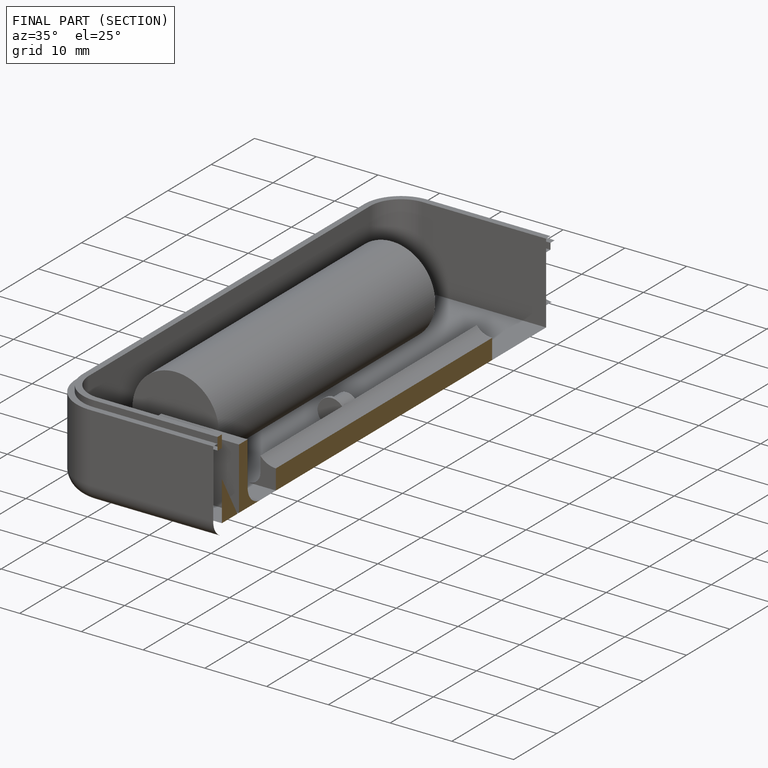
[diagram: finished part — half-section view (interior)]
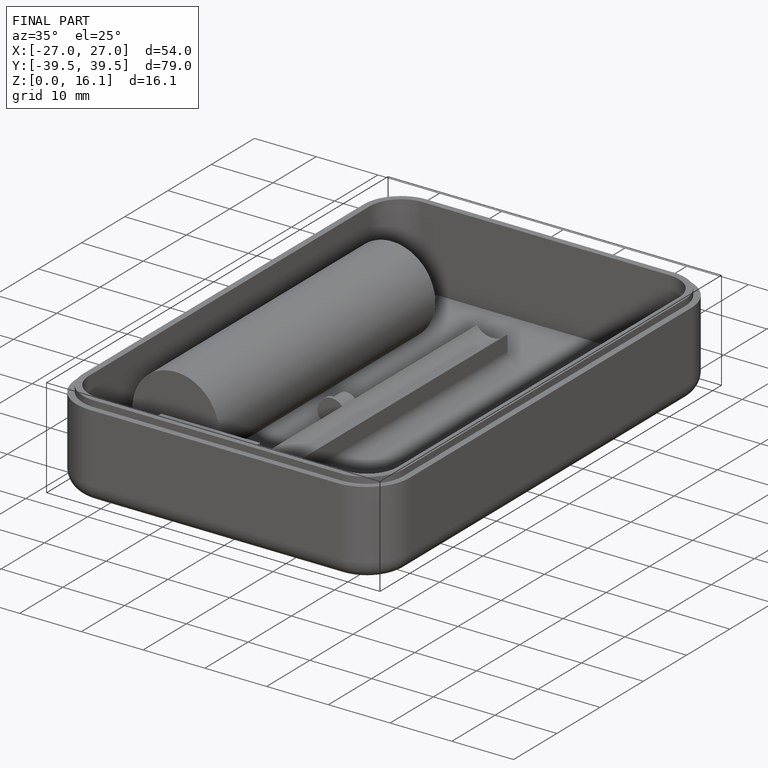
[diagram: finished part — iso view with bounding-box wireframe]
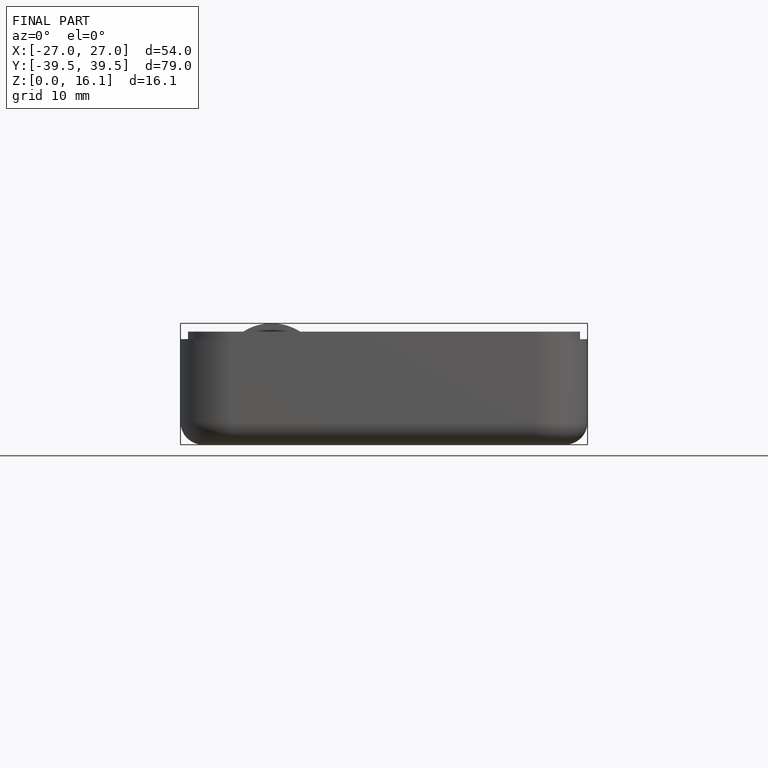
[diagram: finished part — front view with bounding-box wireframe]
